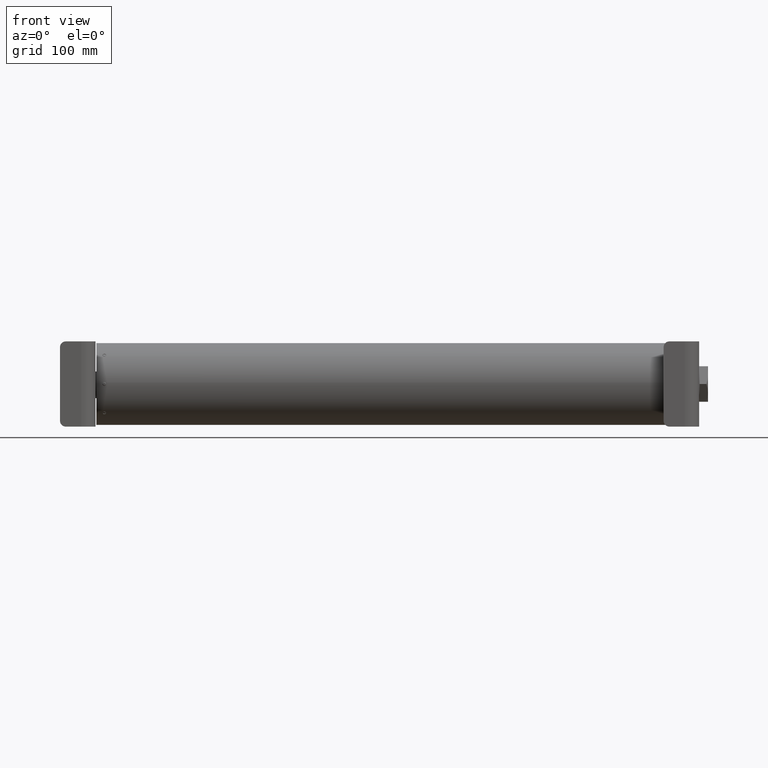
[diagram: clean part render]
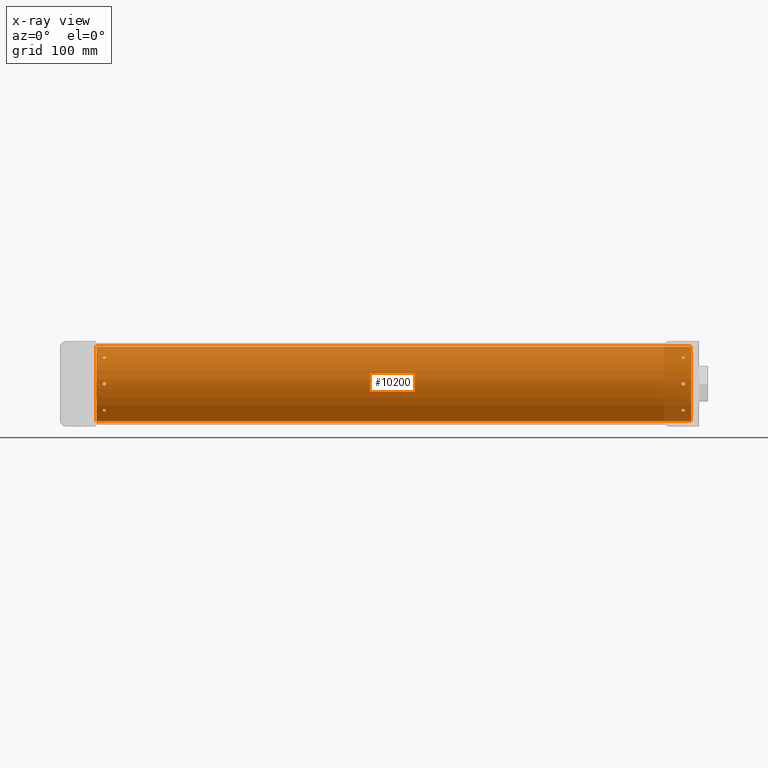
[diagram: x-ray — body ghosted, one internal face saturated and labeled with its STEP entity id]
A machine part, front view, then the same camera in x-ray: the body is ghosted and one INTERNAL B-rep face — a face not visible from any outside direction — is saturated and labeled: STEP entity #10200.
In plain terms, the highlighted cylindrical surface (partial cylindrical patch) has radius 33.3375 mm, axis along (-1, -0, -0).
Its self-contained STEP definition (entity closure, byte-faithful):
#28 = CARTESIAN_POINT ( 'NONE',  ( 10.14287910837391493, -0.9568006874301553388, -0.8984415503835769812 ) ) ;
#61 = ORIENTED_EDGE ( 'NONE', *, *, #16589, .F. ) ;
#178 = CARTESIAN_POINT ( 'NONE',  ( 10.46899999999999942, 0.000000000000000000, 1.312500000000000000 ) ) ;
#210 = CARTESIAN_POINT ( 'NONE',  ( -10.25049876357292433, -1.312405983245032548, 0.01621275524315042224 ) ) ;
#291 = CARTESIAN_POINT ( 'NONE',  ( -10.13071096452952702, -1.312350079511483303, 0.02019413915220366965 ) ) ;
#342 = CARTESIAN_POINT ( 'NONE',  ( -10.13383652624999343, -0.02772556189842324478, 1.312212588228475862 ) ) ;
#392 = VERTEX_POINT ( 'NONE', #2007 ) ;
#432 = CARTESIAN_POINT ( 'NONE',  ( -10.21012863043742591, -1.311160106146374238, 0.05931181295824174832 ) ) ;
#438 = CARTESIAN_POINT ( 'NONE',  ( 10.13577797570884442, -0.03134965782268164802, -1.312129915562598947 ) ) ;
#442 = CARTESIAN_POINT ( 'NONE',  ( -10.15159087475541178, -0.04997506726929461240, 1.311560908077971987 ) ) ;
#480 = B_SPLINE_CURVE_WITH_KNOTS ( 'NONE', 3,
 ( #15138, #10946, #15358, #829, #10315, #4107, #15261, #3791, #7162, #2203, #16944, #7265, #9346, #735, #2913, #13546, #17052, #10215, #10541, #20016, #5449, #16707, #12045, #2524 ),
 .UNSPECIFIED., .F., .F.,
 ( 4, 2, 2, 2, 2, 2, 2, 2, 2, 2, 2, 4 ),
 ( 0.004963951373036046798, 0.005584304017098234291, 0.006204656661160421784, 0.006514832983191456983, 0.006825009305222492183, 0.007135185627253527382, 0.007445361949284561714, 0.008065714593346618236, 0.008375890915377649099, 0.008686067237408679961, 0.009306419881470870056, 0.009926772525533060151 ),
 .UNSPECIFIED. ) ;
#509 = CARTESIAN_POINT ( 'NONE',  ( 10.13537691268047958, -1.312144804314459234, -0.03144606529227998021 ) ) ;
#543 = CARTESIAN_POINT ( 'NONE',  ( 10.12790785167592311, -0.008216472667664854665, -1.312480398968122408 ) ) ;
#576 = CARTESIAN_POINT ( 'NONE',  ( 10.24616619659018113, -0.02771950554009147000, -1.312212706656428862 ) ) ;
#580 = CARTESIAN_POINT ( 'NONE',  ( -10.46899999999999942, 0.000000000000000000, 1.312500000000000000 ) ) ;
#595 = CARTESIAN_POINT ( 'NONE',  ( 10.15189639809319999, -0.9625631993316471346, 0.8922631283820494641 ) ) ;
#607 = CARTESIAN_POINT ( 'NONE',  ( -10.18999999999941508, -0.9712189847111223351, -0.8828306370627929667 ) ) ;
#613 = CARTESIAN_POINT ( 'NONE',  ( -10.14295391688715497, -1.311851756863856133, 0.04134628760164701239 ) ) ;
#623 = CARTESIAN_POINT ( 'NONE',  ( 10.25250679181930913, -1.312500323419884651, -0.008193356651929590770 ) ) ;
#628 = CARTESIAN_POINT ( 'NONE',  ( 10.16987136956140425, -1.311160106146374238, 0.05931181295824174832 ) ) ;
#650 = CARTESIAN_POINT ( 'NONE',  ( 10.23970401168617350, -0.03811107001241114539, 1.311950969906845010 ) ) ;
#656 = CARTESIAN_POINT ( 'NONE',  ( 10.18999999999941508, -0.06250000000000538458, -1.311011060212689205 ) ) ;
#684 = EDGE_CURVE ( 'NONE', #14212, #11954, #15694, .T. ) ;
#711 = DIRECTION ( 'NONE',  ( -1.000000000000000000, -0.000000000000000000, -0.000000000000000000 ) ) ;
#730 = CARTESIAN_POINT ( 'NONE',  ( -10.20622845510852450, -0.06049426845170316480, -1.311105385765345632 ) ) ;
#735 = CARTESIAN_POINT ( 'NONE',  ( 10.25250679181931091, -0.9338714570490020961, 0.9222843009504724243 ) ) ;
#763 = CARTESIAN_POINT ( 'NONE',  ( -10.22135592047505881, -0.8889486419472024670, 0.9656250266053008069 ) ) ;
#818 = CARTESIAN_POINT ( 'NONE',  ( -10.20618057488107233, -0.8843066081156492064, -0.9698756130673442666 ) ) ;
#829 = CARTESIAN_POINT ( 'NONE',  ( 10.22142167512195776, -0.8886416439686655178, 0.9659099271619302485 ) ) ;
#863 = CARTESIAN_POINT ( 'NONE',  ( -10.24618715497762089, -0.9083044652828077270, 0.9474458144734928533 ) ) ;
#915 = CARTESIAN_POINT ( 'NONE',  ( -10.18999999999941508, -0.9712189847111223351, -0.8828306370627929667 ) ) ;
#929 = CARTESIAN_POINT ( 'NONE',  ( -10.23970420657752101, -0.9546368764913508720, -0.9007420047900269733 ) ) ;
#944 = CARTESIAN_POINT ( 'NONE',  ( 10.22149724892188871, -1.311367829714471300, -0.05459339693408346572 ) ) ;
#977 = CARTESIAN_POINT ( 'NONE',  ( 10.46899999999999942, 0.000000000000000000, 1.312500000000000000 ) ) ;
#980 = CARTESIAN_POINT ( 'NONE',  ( -10.25250144853857215, -0.9252104873692937881, 0.9309449107950878988 ) ) ;
#1051 = EDGE_CURVE ( 'NONE', #17326, #14702, #14488, .T. ) ;
#1053 = CARTESIAN_POINT ( 'NONE',  ( -10.15850275107694145, -1.311367829714471300, -0.05459339693408346572 ) ) ;
#1055 = CARTESIAN_POINT ( 'NONE',  ( -10.23969626046341297, -0.03811968860917736013, -1.311950687221227430 ) ) ;
#1124 = CARTESIAN_POINT ( 'NONE',  ( -10.14029550793072509, -0.03811078370472212318, -1.311950985408540493 ) ) ;
#1151 = CARTESIAN_POINT ( 'NONE',  ( -10.18999999999941508, -1.311011060212689872, -0.06249999999999066025 ) ) ;
#1152 = CARTESIAN_POINT ( 'NONE',  ( -10.22134944626843733, -0.05422206663724316728, -1.311381463636385858 ) ) ;
#1196 = EDGE_CURVE ( 'NONE', #20209, #8218, #8029, .T. ) ;
#1232 = VERTEX_POINT ( 'NONE', #13142 ) ;
#1320 = CARTESIAN_POINT ( 'NONE',  ( -10.17361316045856867, -0.06086095584708684642, -1.311091881801277115 ) ) ;
#1377 = LINE ( 'NONE', #9383, #20743 ) ;
#1414 = CARTESIAN_POINT ( 'NONE',  ( -10.18999999999941508, -0.8828306370628029587, -0.9712189847111128982 ) ) ;
#1458 = FACE_BOUND ( 'NONE', #12438, .T. ) ;
#1491 = CARTESIAN_POINT ( 'NONE',  ( 10.20637834143496825, -0.9701183098797923066, -0.8840454873032687066 ) ) ;
#1592 = CIRCLE ( 'NONE', #3613, 1.312500000000000000 ) ;
#1631 = CARTESIAN_POINT ( 'NONE',  ( 10.13068188775074141, -0.9421919357103997195, -0.9137532102807178758 ) ) ;
#1687 = CARTESIAN_POINT ( 'NONE',  ( 10.13381284502120927, -0.9083044652828077270, 0.9474458144734928533 ) ) ;
#1808 = EDGE_CURVE ( 'NONE', #1971, #3128, #13337, .T. ) ;
#1901 = B_SPLINE_CURVE_WITH_KNOTS ( 'NONE', 3,
 ( #2179, #8607, #5422, #4845, #14398, #8121, #13014, #595, #8013, #15114, #12814, #14710, #7906, #6636, #11217, #4755, #9694, #1687, #16683, #16092, #17924, #13129, #11316, #17815, #7027, #3473, #10194, #19992, #20887, #9588 ),
 .UNSPECIFIED., .F., .F.,
 ( 4, 2, 2, 2, 2, 2, 2, 2, 2, 2, 2, 2, 2, 2, 4 ),
 ( 0.000000000000000000, 0.0003102469608147090689, 0.0006204939216294181378, 0.0009307408824441270982, 0.001240987843258836276, 0.001861481764888371507, 0.002481975686517907172, 0.002792222647332674463, 0.003102469608147442187, 0.003412716568962209478, 0.003722963529776976768, 0.004033210490591744059, 0.004343457451406511349, 0.004653704412221279507, 0.004963951373036046798 ),
 .UNSPECIFIED. ) ;
#1914 = CARTESIAN_POINT ( 'NONE',  ( -10.21771970946738683, -1.311298617217787843, -0.05616629743107677541 ) ) ;
#1971 = VERTEX_POINT ( 'NONE', #3232 ) ;
#2007 = CARTESIAN_POINT ( 'NONE',  ( 10.18999999999941508, -1.311011060212688761, 0.06250000000001088019 ) ) ;
#2013 = CARTESIAN_POINT ( 'NONE',  ( 10.20646251847683139, -0.8840623107461518249, -0.9701030123224134716 ) ) ;
#2029 = CARTESIAN_POINT ( 'NONE',  ( -10.23712089162491345, -1.311854367101795038, 0.04126614154983375415 ) ) ;
#2038 = CARTESIAN_POINT ( 'NONE',  ( 10.14288712452890096, -0.04127521169987972277, -1.311854079302999132 ) ) ;
#2099 = EDGE_LOOP ( 'NONE', ( #7954, #7105 ) ) ;
#2101 = CARTESIAN_POINT ( 'NONE',  ( -10.18999999999941508, -1.311011060212688761, 0.06250000000001088019 ) ) ;
#2179 = CARTESIAN_POINT ( 'NONE',  ( 10.18999999999941508, -0.9712189847111158958, 0.8828306370627995170 ) ) ;
#2188 = CARTESIAN_POINT ( 'NONE',  ( -10.22810360190563017, -0.8922631283820529058, -0.9625631993316443591 ) ) ;
#2203 = CARTESIAN_POINT ( 'NONE',  ( 10.24928903546930137, -0.9136922277785324287, 0.9422510532480172785 ) ) ;
#2208 = CARTESIAN_POINT ( 'NONE',  ( 10.14868019086590145, -1.311658883975127310, -0.04706958367393404563 ) ) ;
#2211 = CARTESIAN_POINT ( 'NONE',  ( -10.15160275101943732, -0.8920700670674857058, 0.9627566854523069706 ) ) ;
#2317 = CARTESIAN_POINT ( 'NONE',  ( 10.25208931873546980, -1.312480266540686724, 0.008231452960041378206 ) ) ;
#2324 = CARTESIAN_POINT ( 'NONE',  ( -10.15153848956230398, -0.9627240709858824186, 0.8921053567529312334 ) ) ;
#2342 = CARTESIAN_POINT ( 'NONE',  ( 10.18177943252526063, -0.06209139667569163468, -1.311030719532256139 ) ) ;
#2353 = EDGE_LOOP ( 'NONE', ( #20401, #8323 ) ) ;
#2369 = CARTESIAN_POINT ( 'NONE',  ( 10.12790860324885145, -0.008220567197727773195, 1.312480363752701829 ) ) ;
#2413 = CARTESIAN_POINT ( 'NONE',  ( -10.23711287546992743, -0.04127521169987972277, -1.311854079302999132 ) ) ;
#2421 = CARTESIAN_POINT ( 'NONE',  ( 10.25249999999941508, 0.000000000000000000, 1.312500000000000000 ) ) ;
#2429 = CARTESIAN_POINT ( 'NONE',  ( -10.13572932955796269, -0.9499261609024106656, 0.9057086049094468239 ) ) ;
#2495 = VERTEX_POINT ( 'NONE', #15616 ) ;
#2524 = CARTESIAN_POINT ( 'NONE',  ( 10.18999999999941508, -0.9712189847111158958, 0.8828306370627995170 ) ) ;
#2554 = B_SPLINE_CURVE_WITH_KNOTS ( 'NONE', 3,
 ( #13762, #13658, #18553, #20355, #5792, #20020, #7268, #15029, #2208, #20238, #509, #5677, #4004, #12166, #12271, #8634, #13550, #8752, #16826, #15143, #10429, #6948, #7390, #18664, #13439, #628, #5453, #10221, #4112, #5561 ),
 .UNSPECIFIED., .F., .F.,
 ( 4, 2, 2, 2, 2, 2, 2, 2, 2, 2, 2, 2, 2, 2, 4 ),
 ( 0.000000000000000000, 0.0003102469608147086894, 0.0006204939216294173788, 0.0009307408824441261224, 0.001240987843258834758, 0.001861481764888369556, 0.002481975686517904570, 0.002792222647332672295, 0.003102469608147440019, 0.003412716568962207743, 0.003722963529776975034, 0.004033210490591742324, 0.004343457451406510482, 0.004653704412221277772, 0.004963951373036045930 ),
 .UNSPECIFIED. ) ;
#2594 = CARTESIAN_POINT ( 'NONE',  ( -10.14293547739658052, -0.04132551438323744247, -1.311852417433045481 ) ) ;
#2613 = CARTESIAN_POINT ( 'NONE',  ( 10.18999999999941508, -1.311011060212689872, -0.06249999999999066025 ) ) ;
#2697 = CARTESIAN_POINT ( 'NONE',  ( 10.13382242562529534, -0.02769702266098317267, 1.312213194004898664 ) ) ;
#2909 = CARTESIAN_POINT ( 'NONE',  ( 10.17376794942164686, -0.9698668077373024943, -0.8843162697362859648 ) ) ;
#2913 = CARTESIAN_POINT ( 'NONE',  ( 10.25089003695845591, -0.9395523004986858773, 0.9164906898068999608 ) ) ;
#2988 = EDGE_CURVE ( 'NONE', #8218, #20209, #15158, .T. ) ;
#2993 = CARTESIAN_POINT ( 'NONE',  ( -10.15160275101943732, -0.9627566854523098572, -0.8920700670674820421 ) ) ;
#3128 = VERTEX_POINT ( 'NONE', #11587 ) ;
#3194 = CARTESIAN_POINT ( 'NONE',  ( -10.15857832487687240, -0.9659099271619332461, -0.8886416439686622981 ) ) ;
#3232 = CARTESIAN_POINT ( 'NONE',  ( -10.18999999999941508, -1.311011060212688761, 0.06250000000001088019 ) ) ;
#3252 = CARTESIAN_POINT ( 'NONE',  ( -10.18999999999941508, -0.8828306370628029587, -0.9712189847111128982 ) ) ;
#3274 = CARTESIAN_POINT ( 'NONE',  ( -10.24617757437353660, -0.02769702266098317614, 1.312213194004898664 ) ) ;
#3279 = CARTESIAN_POINT ( 'NONE',  ( 10.19825841666817468, -0.8828306370628029587, -0.9712189847111130092 ) ) ;
#3307 = CARTESIAN_POINT ( 'NONE',  ( -10.13069719693461757, -0.02015490299760677381, 1.312350701364927152 ) ) ;
#3401 = CARTESIAN_POINT ( 'NONE',  ( 10.25209444894672473, -0.008193003813655007003, 1.312480510634228326 ) ) ;
#3473 = CARTESIAN_POINT ( 'NONE',  ( 10.16987136956140425, -0.8851904171301394619, 0.9690699874246103684 ) ) ;
#3498 = CARTESIAN_POINT ( 'NONE',  ( -10.22135592047505703, -1.311381617243487341, 0.05421839154861742699 ) ) ;
#3613 = AXIS2_PLACEMENT_3D ( 'NONE', #9336, #4387, #20519 ) ;
#3617 = CARTESIAN_POINT ( 'NONE',  ( 10.12749999999941330, 1.607348936011528997E-16, -1.312500000000000000 ) ) ;
#3650 = CARTESIAN_POINT ( 'NONE',  ( 10.25249999999941508, -0.004125203379245419820, -1.312499999999999778 ) ) ;
#3781 = CARTESIAN_POINT ( 'NONE',  ( -10.23712089162491345, -0.9568006874301553388, -0.8984415503835769812 ) ) ;
#3791 = CARTESIAN_POINT ( 'NONE',  ( 10.24422896657614857, -0.9056556968148870013, 0.9499766101858357903 ) ) ;
#3821 = CARTESIAN_POINT ( 'NONE',  ( 10.15188220224327864, -0.04969762354489429268, -1.311560719865273450 ) ) ;
#3837 = EDGE_CURVE ( 'NONE', #19269, #11954, #8926, .T. ) ;
#3878 = CARTESIAN_POINT ( 'NONE',  ( -10.13572932955795913, -1.312131926311075114, -0.03126653369011270223 ) ) ;
#3890 = CARTESIAN_POINT ( 'NONE',  ( 10.24427067044086570, -1.312131926311075114, -0.03126653369011270223 ) ) ;
#3900 = VERTEX_POINT ( 'NONE', #915 ) ;
#3922 = CARTESIAN_POINT ( 'NONE',  ( -10.25049876357292611, -0.9165470212482171863, 0.9394753195965053205 ) ) ;
#3948 = CARTESIAN_POINT ( 'NONE',  ( 10.16987411642857531, -0.05931240293164678767, 1.311160076628461013 ) ) ;
#3985 = CARTESIAN_POINT ( 'NONE',  ( -10.25049876357292433, -0.9394753195965078740, -0.9165470212482140777 ) ) ;
#3993 = CARTESIAN_POINT ( 'NONE',  ( -10.25209214832290705, -0.008216472667664854665, -1.312480398968122408 ) ) ;
#4004 = CARTESIAN_POINT ( 'NONE',  ( 10.12750290897646011, -1.312499861477292917, -0.008176497764455167155 ) ) ;
#4008 = CARTESIAN_POINT ( 'NONE',  ( -10.13384994440204068, -0.9082505042319246602, 0.9474975229584243763 ) ) ;
#4043 = CARTESIAN_POINT ( 'NONE',  ( -10.18999999999941508, -0.8828306370628029587, -0.9712189847111128982 ) ) ;
#4107 = CARTESIAN_POINT ( 'NONE',  ( 10.23704608311167163, -0.8983830328499109452, 0.9568555135299275927 ) ) ;
#4112 = CARTESIAN_POINT ( 'NONE',  ( 10.18592062496465900, -1.311011060212689205, 0.06250000000001088019 ) ) ;
#4127 = CARTESIAN_POINT ( 'NONE',  ( -10.18999999999941508, -0.9712189847111158958, 0.8828306370627995170 ) ) ;
#4133 = CARTESIAN_POINT ( 'NONE',  ( -10.23712089162491701, -0.8984415503835802008, 0.9568006874301517861 ) ) ;
#4168 = CARTESIAN_POINT ( 'NONE',  ( -10.18999999999941508, -0.06250000000000538458, -1.311011060212689205 ) ) ;
#4236 = ORIENTED_EDGE ( 'NONE', *, *, #6792, .F. ) ;
#4262 = B_SPLINE_CURVE_WITH_KNOTS ( 'NONE', 3,
 ( #3252, #7249, #8512, #818, #18533, #13741, #5774, #2188, #7037, #8734, #10300, #8617, #20002, #13421, #5658, #3985, #15125, #18333, #8942, #929, #3781, #20105, #5339, #10205, #6934, #10411, #17040, #5538, #7150, #607 ),
 .UNSPECIFIED., .F., .F.,
 ( 4, 2, 2, 2, 2, 2, 2, 2, 2, 2, 2, 2, 2, 2, 4 ),
 ( 0.000000000000000000, 0.0003102469608147071715, 0.0006204939216294143431, 0.0009307408824441214604, 0.001240987843258828686, 0.001861481764888360231, 0.002481975686517891994, 0.002792222647332661453, 0.003102469608147431345, 0.003412716568962200804, 0.003722963529776969829, 0.004033210490591738855, 0.004343457451406508747, 0.004653704412221277772, 0.004963951373036047665 ),
 .UNSPECIFIED. ) ;
#4372 = CARTESIAN_POINT ( 'NONE',  ( 10.13068675872262503, -0.02012422262064517825, 1.312351175276166071 ) ) ;
#4384 = CARTESIAN_POINT ( 'NONE',  ( -10.12790442347842124, -0.008185117757112655990, -1.312480564079608669 ) ) ;
#4387 = DIRECTION ( 'NONE',  ( 1.000000000000000000, 0.000000000000000000, 0.000000000000000000 ) ) ;
#4453 = CARTESIAN_POINT ( 'NONE',  ( 10.24618838027965317, -0.9083056544690546463, -0.9474446965540086474 ) ) ;
#4489 = CARTESIAN_POINT ( 'NONE',  ( 10.13381284502120749, -0.9474458144734961840, -0.9083044652828045074 ) ) ;
#4510 = FACE_BOUND ( 'NONE', #2353, .T. ) ;
#4566 = CARTESIAN_POINT ( 'NONE',  ( -10.12791068126336214, -0.9338842128515078000, -0.9222431804373861786 ) ) ;
#4672 = CARTESIAN_POINT ( 'NONE',  ( -10.13384994440204245, -0.9474975229584277070, -0.9082505042319216626 ) ) ;
#4749 = CARTESIAN_POINT ( 'NONE',  ( 10.18999999999941508, -0.06250000000000538458, -1.311011060212689205 ) ) ;
#4755 = CARTESIAN_POINT ( 'NONE',  ( 10.12950123642590761, -0.9165470212482171863, 0.9394753195965053205 ) ) ;
#4797 = CARTESIAN_POINT ( 'NONE',  ( 10.12750290897646011, -0.9222958953413930017, -0.9338592093726030274 ) ) ;
#4845 = CARTESIAN_POINT ( 'NONE',  ( 10.17381942511775605, -0.9698756130673472642, 0.8843066081156457647 ) ) ;
#4866 = CARTESIAN_POINT ( 'NONE',  ( -10.23131980913293049, -1.311658883975127310, -0.04706958367393404563 ) ) ;
#4870 = CARTESIAN_POINT ( 'NONE',  ( -10.18184310756028310, -0.9712189847111222241, -0.8828306370627928557 ) ) ;
#4920 = ORIENTED_EDGE ( 'NONE', *, *, #14547, .F. ) ;
#5019 = VERTEX_POINT ( 'NONE', #19896 ) ;
#5081 = CARTESIAN_POINT ( 'NONE',  ( -10.22812518729126374, -1.311560933468707502, 0.04969202979307052459 ) ) ;
#5193 = FACE_BOUND ( 'NONE', #16145, .T. ) ;
#5208 = CARTESIAN_POINT ( 'NONE',  ( 10.18999999999941508, -0.06250000000000538458, -1.311011060212689205 ) ) ;
#5242 = CARTESIAN_POINT ( 'NONE',  ( -10.12749320817951926, -1.312500323419884651, -0.008193356651929590770 ) ) ;
#5279 = CARTESIAN_POINT ( 'NONE',  ( -10.20618057488107056, -1.311104822154029570, -0.06050642366072561673 ) ) ;
#5339 = CARTESIAN_POINT ( 'NONE',  ( -10.22812518729126552, -0.9625512012326833400, -0.8922760587574796176 ) ) ;
#5415 = EDGE_CURVE ( 'NONE', #1232, #5505, #11133, .T. ) ;
#5422 = CARTESIAN_POINT ( 'NONE',  ( 10.18180884475502879, -0.9709461370013895420, 0.8831310667289654637 ) ) ;
#5430 = B_SPLINE_CURVE_WITH_KNOTS ( 'NONE', 3,
 ( #18758, #18541, #3993, #15666, #13748, #16936, #10418, #1055, #2413, #20225, #7485, #1152, #10636, #7375, #730, #12357, #8851, #15352 ),
 .UNSPECIFIED., .F., .F.,
 ( 4, 2, 2, 2, 2, 2, 2, 2, 4 ),
 ( 0.002482540459360719261, 0.002792716823570135041, 0.003102893187779551254, 0.003413069551988967033, 0.003723245916198382813, 0.004033422280407799460, 0.004343598644617214372, 0.004653775008826631018, 0.004963951373036046798 ),
 .UNSPECIFIED. ) ;
#5449 = CARTESIAN_POINT ( 'NONE',  ( 10.22149724892188871, -0.9658804462010922576, 0.8886737238408842776 ) ) ;
#5453 = CARTESIAN_POINT ( 'NONE',  ( 10.17376794942164508, -1.311105427642915933, 0.06049336555467969834 ) ) ;
#5458 = CARTESIAN_POINT ( 'NONE',  ( -10.18174158333065193, -0.9712189847111154517, 0.8828306370627994060 ) ) ;
#5505 = VERTEX_POINT ( 'NONE', #19236 ) ;
#5509 = CARTESIAN_POINT ( 'NONE',  ( 10.20638683954025971, -0.06086095584708684642, -1.311091881801277115 ) ) ;
#5524 = CARTESIAN_POINT ( 'NONE',  ( 10.46899999999999942, 1.607348923880901038E-16, -1.312500000000000000 ) ) ;
#5538 = CARTESIAN_POINT ( 'NONE',  ( -10.19822243979263554, -0.9709438334509641333, -0.8831336036831529679 ) ) ;
#5554 = CARTESIAN_POINT ( 'NONE',  ( 10.24928903546930137, -1.312350079511483303, 0.02019413915220366965 ) ) ;
#5557 = EDGE_CURVE ( 'NONE', #3900, #14139, #6321, .T. ) ;
#5561 = CARTESIAN_POINT ( 'NONE',  ( 10.18999999999941508, -1.311011060212688761, 0.06250000000001088019 ) ) ;
#5594 = DIRECTION ( 'NONE',  ( 1.000000000000000000, 0.000000000000000000, 0.000000000000000000 ) ) ;
#5620 = CARTESIAN_POINT ( 'NONE',  ( 10.13577793564121698, -0.03134945029622759893, 1.312129918354210778 ) ) ;
#5658 = CARTESIAN_POINT ( 'NONE',  ( -10.25209491630712932, -0.9338593641257538769, -0.9222684025404848107 ) ) ;
#5672 = EDGE_LOOP ( 'NONE', ( #11694, #10709 ) ) ;
#5677 = CARTESIAN_POINT ( 'NONE',  ( 10.12914378099014456, -1.312419058537813710, -0.01640296614989320695 ) ) ;
#5680 = CARTESIAN_POINT ( 'NONE',  ( -10.12750342791720648, -0.9251259668946950621, 0.9310291028720784068 ) ) ;
#5774 = CARTESIAN_POINT ( 'NONE',  ( -10.22130961342083388, -0.8889282232637566450, -0.9656438354087072407 ) ) ;
#5785 = VERTEX_POINT ( 'NONE', #977 ) ;
#5789 = CARTESIAN_POINT ( 'NONE',  ( 10.20646251847682962, -1.311092873382727619, -0.06083996354261958506 ) ) ;
#5792 = CARTESIAN_POINT ( 'NONE',  ( 10.16984958333519629, -1.311160448044416782, -0.05930426602162088001 ) ) ;
#5817 = CARTESIAN_POINT ( 'NONE',  ( -10.23128733194786655, -0.8941757406943271480, 0.9607884885219094562 ) ) ;
#5842 = CARTESIAN_POINT ( 'NONE',  ( 10.14872479289895502, -0.04711287952885028635, 1.311657403268107203 ) ) ;
#5854 = CARTESIAN_POINT ( 'NONE',  ( -10.13383380340864726, -0.02771950554009147000, -1.312212706656428862 ) ) ;
#5941 = CARTESIAN_POINT ( 'NONE',  ( 10.12749999999941330, 2.168202832509523014E-25, 1.312500000000000000 ) ) ;
#5954 = CARTESIAN_POINT ( 'NONE',  ( -10.12749999999940975, -0.004125203379245419820, -1.312499999999999778 ) ) ;
#6041 = CARTESIAN_POINT ( 'NONE',  ( 10.20637834143496825, -1.311091794418740575, 0.06086267651972957632 ) ) ;
#6058 = CARTESIAN_POINT ( 'NONE',  ( -10.13071096452952879, -0.9422510532480200540, -0.9136922277785288760 ) ) ;
#6113 = EDGE_CURVE ( 'NONE', #11610, #392, #2554, .T. ) ;
#6140 = CARTESIAN_POINT ( 'NONE',  ( -10.21012588357025486, -0.05931240293164678767, 1.311160076628461013 ) ) ;
#6144 = CARTESIAN_POINT ( 'NONE',  ( 10.23704608311167341, -0.9568555135299308123, -0.8983830328499075035 ) ) ;
#6174 = CARTESIAN_POINT ( 'NONE',  ( 10.15189639809320710, -0.8922631283820529058, -0.9625631993316443591 ) ) ;
#6178 = CARTESIAN_POINT ( 'NONE',  ( 10.22846151043652796, -1.311562466298478613, -0.04993497171278667157 ) ) ;
#6302 = DIRECTION ( 'NONE',  ( -1.000000000000000000, -0.000000000000000000, -0.000000000000000000 ) ) ;
#6321 = B_SPLINE_CURVE_WITH_KNOTS ( 'NONE', 3,
 ( #12631, #4870, #7637, #3194, #2993, #7736, #20607, #20812, #4672, #6058, #9318, #4566, #7934, #17742, #14240, #11137, #11023, #9424, #8044, #9620, #15932, #6463, #12847, #1414 ),
 .UNSPECIFIED., .F., .F.,
 ( 4, 2, 2, 2, 2, 2, 2, 2, 2, 2, 2, 4 ),
 ( 0.004963951373036047665, 0.005584304017098241230, 0.006204656661160433927, 0.006514832983191471728, 0.006825009305222509530, 0.007135185627253547332, 0.007445361949284584266, 0.008065714593346645991, 0.008375890915377673385, 0.008686067237408699043, 0.009306419881470882199, 0.009926772525533063621 ),
 .UNSPECIFIED. ) ;
#6381 = CARTESIAN_POINT ( 'NONE',  ( 10.18999999999941508, -0.8828306370628029587, -0.9712189847111128982 ) ) ;
#6442 = CARTESIAN_POINT ( 'NONE',  ( -10.25049426826028665, -0.01622845596688747907, 1.312405775733408220 ) ) ;
#6446 = CARTESIAN_POINT ( 'NONE',  ( 10.19815689243854528, -0.9712189847111222241, -0.8828306370627928557 ) ) ;
#6458 = CARTESIAN_POINT ( 'NONE',  ( -10.18999999999941508, -1.311011060212688761, 0.06250000000001088019 ) ) ;
#6463 = CARTESIAN_POINT ( 'NONE',  ( -10.17353748152200410, -0.8840623107461518249, -0.9701030123224134716 ) ) ;
#6469 = CARTESIAN_POINT ( 'NONE',  ( -10.18184375852760937, -0.06249999999998679528, 1.311011060212690538 ) ) ;
#6557 = CARTESIAN_POINT ( 'NONE',  ( 10.25249999999941508, 0.000000000000000000, 1.312500000000000000 ) ) ;
#6636 = CARTESIAN_POINT ( 'NONE',  ( 10.12749855146025801, -0.9252104873692937881, 0.9309449107950878988 ) ) ;
#6663 = CARTESIAN_POINT ( 'NONE',  ( -10.24931811224809053, -1.312351398240575895, 0.02010921559963347455 ) ) ;
#6677 = CARTESIAN_POINT ( 'NONE',  ( -10.17361497914365209, -0.06086130023875479383, 1.311091863995401008 ) ) ;
#6740 = CARTESIAN_POINT ( 'NONE',  ( -10.12950420183009825, -1.312405847348199650, 0.01622031820890869683 ) ) ;
#6751 = B_SPLINE_CURVE_WITH_KNOTS ( 'NONE', 3,
 ( #6557, #11456, #3401, #9830, #8246, #14743, #16636, #650, #13574, #7294, #16970, #13787, #12188, #6871 ),
 .UNSPECIFIED., .F., .F.,
 ( 4, 2, 2, 2, 2, 2, 4 ),
 ( 0.000000000000000000, 0.0003103175628844192005, 0.0006206351257688384011, 0.0009309526886532576559, 0.001241270251537676802, 0.001861905377306397351, 0.002482540503075117682 ),
 .UNSPECIFIED. ) ;
#6783 = CARTESIAN_POINT ( 'NONE',  ( -10.18999999999941508, -0.06249999999998706590, 1.311011060212689872 ) ) ;
#6792 = EDGE_CURVE ( 'NONE', #8180, #14212, #15437, .T. ) ;
#6818 = EDGE_CURVE ( 'NONE', #16602, #18990, #15170, .T. ) ;
#6869 = CARTESIAN_POINT ( 'NONE',  ( -10.19822243979263376, -1.311030728642508691, 0.06209120892637135652 ) ) ;
#6871 = CARTESIAN_POINT ( 'NONE',  ( 10.18999999999941508, -0.06249999999998706590, 1.311011060212689872 ) ) ;
#6934 = CARTESIAN_POINT ( 'NONE',  ( -10.21770295149501173, -0.9669494157435988280, -0.8875063619486212030 ) ) ;
#6948 = CARTESIAN_POINT ( 'NONE',  ( 10.14871266805096006, -1.311657785337277948, 0.04710232570236079497 ) ) ;
#6963 = AXIS2_PLACEMENT_3D ( 'NONE', #20861, #6302, #17693 ) ;
#6978 = B_SPLINE_CURVE_WITH_KNOTS ( 'NONE', 3,
 ( #4168, #10604, #1320, #12541, #8915, #2594, #1124, #17122, #5854, #15735, #14252, #4384, #5954, #13832 ),
 .UNSPECIFIED., .F., .F.,
 ( 4, 2, 2, 2, 2, 2, 4 ),
 ( 0.004963951373036046798, 0.005584627815854218379, 0.006205304258672389960, 0.006515642480081416769, 0.006825980701490443579, 0.007136318922899470389, 0.007446657144308497199 ),
 .UNSPECIFIED. ) ;
#7002 = ORIENTED_EDGE ( 'NONE', *, *, #19140, .T. ) ;
#7027 = CARTESIAN_POINT ( 'NONE',  ( 10.16229704850382021, -0.8875063619486243116, 0.9669494157435959414 ) ) ;
#7037 = CARTESIAN_POINT ( 'NONE',  ( -10.23131980913293226, -0.8941996696589230575, -0.9607661132658604775 ) ) ;
#7044 = CARTESIAN_POINT ( 'NONE',  ( -10.14031394646828232, -1.311950285830957297, 0.03813461133275729276 ) ) ;
#7054 = CARTESIAN_POINT ( 'NONE',  ( 10.23974444789589455, -1.311952513039696733, -0.03805774169120246936 ) ) ;
#7063 = CARTESIAN_POINT ( 'NONE',  ( -10.13577103342268337, -0.9056556968148870013, 0.9499766101858357903 ) ) ;
#7090 = CARTESIAN_POINT ( 'NONE',  ( -10.25249709102237361, -0.9338592093726061361, 0.9222958953413896710 ) ) ;
#7105 = ORIENTED_EDGE ( 'NONE', *, *, #13257, .F. ) ;
#7122 = CARTESIAN_POINT ( 'NONE',  ( 10.25249999999941508, 1.607348924524440699E-16, -1.312500000000000000 ) ) ;
#7133 = EDGE_CURVE ( 'NONE', #18990, #16602, #16644, .T. ) ;
#7150 = CARTESIAN_POINT ( 'NONE',  ( -10.19407937503416939, -0.9712189847111220020, -0.8828306370627928557 ) ) ;
#7162 = CARTESIAN_POINT ( 'NONE',  ( 10.24615005559679126, -0.9082505042319246602, 0.9474975229584243763 ) ) ;
#7188 = CARTESIAN_POINT ( 'NONE',  ( -10.23131980913293049, -0.9607661132658632530, 0.8941996696589195048 ) ) ;
#7199 = CARTESIAN_POINT ( 'NONE',  ( -10.12749999999941686, 0.000000000000000000, 1.312500000000000000 ) ) ;
#7249 = CARTESIAN_POINT ( 'NONE',  ( -10.19413014870942469, -0.8828306370628032917, -0.9712189847111128982 ) ) ;
#7253 = ORIENTED_EDGE ( 'NONE', *, *, #1196, .F. ) ;
#7255 = CARTESIAN_POINT ( 'NONE',  ( -10.15153848956230576, -1.311562466298478613, -0.04993497171278667157 ) ) ;
#7265 = CARTESIAN_POINT ( 'NONE',  ( 10.25208931873546803, -0.9222431804373895092, 0.9338842128515049135 ) ) ;
#7268 = CARTESIAN_POINT ( 'NONE',  ( 10.15869038657799805, -1.311380478886394307, -0.05424612957056824947 ) ) ;
#7294 = CARTESIAN_POINT ( 'NONE',  ( 10.22840912524341661, -0.04997506726929460547, 1.311560908077972210 ) ) ;
#7299 = CARTESIAN_POINT ( 'NONE',  ( -10.21771970946738683, -0.9669437141829012594, 0.8875125746075800404 ) ) ;
#7352 = EDGE_CURVE ( 'NONE', #8180, #20783, #1377, .T. ) ;
#7375 = CARTESIAN_POINT ( 'NONE',  ( -10.21012422100238837, -0.05931324176639740653, -1.311160040658170045 ) ) ;
#7390 = CARTESIAN_POINT ( 'NONE',  ( 10.15187481270756642, -1.311560933468707502, 0.04969202979307052459 ) ) ;
#7418 = CARTESIAN_POINT ( 'NONE',  ( -10.25085621900868738, -0.9396190646467209584, 0.9164217674543843062 ) ) ;
#7429 = ORIENTED_EDGE ( 'NONE', *, *, #8056, .F. ) ;
#7485 = CARTESIAN_POINT ( 'NONE',  ( -10.22811779775555330, -0.04969762354489429268, -1.311560719865273450 ) ) ;
#7489 = ORIENTED_EDGE ( 'NONE', *, *, #16513, .F. ) ;
#7501 = CARTESIAN_POINT ( 'NONE',  ( -10.18184310756028843, -0.8828306370627964084, 0.9712189847111192265 ) ) ;
#7581 = CARTESIAN_POINT ( 'NONE',  ( -10.14025555210293916, -1.311952513039696733, -0.03805774169120246936 ) ) ;
#7598 = DIRECTION ( 'NONE',  ( -1.000000000000000000, -0.000000000000000000, -0.000000000000000000 ) ) ;
#7637 = CARTESIAN_POINT ( 'NONE',  ( -10.17362165856386191, -0.9701183098797923066, -0.8840454873032687066 ) ) ;
#7736 = CARTESIAN_POINT ( 'NONE',  ( -10.14295391688716208, -0.9568555135299308123, -0.8983830328499075035 ) ) ;
#7825 = CARTESIAN_POINT ( 'NONE',  ( 10.24427067044086748, -0.9057086049094502656, -0.9499261609024076680 ) ) ;
#7882 = FACE_BOUND ( 'NONE', #5672, .T. ) ;
#7906 = CARTESIAN_POINT ( 'NONE',  ( 10.12750290897645833, -0.9338592093726061361, 0.9222958953413896710 ) ) ;
#7934 = CARTESIAN_POINT ( 'NONE',  ( -10.12750342791720826, -0.9310291028720820705, -0.9251259668946920645 ) ) ;
#7954 = ORIENTED_EDGE ( 'NONE', *, *, #6113, .F. ) ;
#7956 = CARTESIAN_POINT ( 'NONE',  ( 10.12790508369170617, -0.9338593641257538769, -0.9222684025404848107 ) ) ;
#8013 = CARTESIAN_POINT ( 'NONE',  ( 10.14868019086590145, -0.9607661132658632530, 0.8941996696589195048 ) ) ;
#8021 = CARTESIAN_POINT ( 'NONE',  ( -10.19407626514715481, -0.06249999999998721856, 1.311011060212690316 ) ) ;
#8029 = B_SPLINE_CURVE_WITH_KNOTS ( 'NONE', 3,
 ( #14117, #6446, #1491, #20591, #17406, #6144, #19118, #19331, #17727, #12934, #12510, #19022, #9601, #19423, #17828, #4453, #7825, #12714, #20798, #8339, #14836, #2013, #3279, #11437 ),
 .UNSPECIFIED., .F., .F.,
 ( 4, 2, 2, 2, 2, 2, 2, 2, 2, 2, 2, 4 ),
 ( 0.004963951373036047665, 0.005584304017098241230, 0.006204656661160433927, 0.006514832983191471728, 0.006825009305222509530, 0.007135185627253547332, 0.007445361949284584266, 0.008065714593346645991, 0.008375890915377673385, 0.008686067237408699043, 0.009306419881470882199, 0.009926772525533063621 ),
 .UNSPECIFIED. ) ;
#8044 = CARTESIAN_POINT ( 'NONE',  ( -10.14289263926919382, -0.8984336632913737519, -0.9568079960292805719 ) ) ;
#8056 = EDGE_CURVE ( 'NONE', #14686, #20783, #6978, .T. ) ;
#8069 = CARTESIAN_POINT ( 'NONE',  ( 10.13577047327864022, -0.9499746460378526436, -0.9056577151637237311 ) ) ;
#8121 = CARTESIAN_POINT ( 'NONE',  ( 10.16228029053144333, -0.9669437141829012594, 0.8875125746075800404 ) ) ;
#8131 = CARTESIAN_POINT ( 'NONE',  ( -10.22811968397680005, -0.04969626395213513903, 1.311560772521887408 ) ) ;
#8172 = CARTESIAN_POINT ( 'NONE',  ( 10.14003303250997590, -0.9005223930612600292, -0.9548554676324989554 ) ) ;
#8175 = ORIENTED_EDGE ( 'NONE', *, *, #12085, .F. ) ;
#8180 = VERTEX_POINT ( 'NONE', #19550 ) ;
#8218 = VERTEX_POINT ( 'NONE', #10162 ) ;
#8244 = CARTESIAN_POINT ( 'NONE',  ( -10.24462308731835236, -1.312144804314459234, -0.03144606529227998021 ) ) ;
#8246 = CARTESIAN_POINT ( 'NONE',  ( 10.24930280306421082, -0.02015490299760677728, 1.312350701364927152 ) ) ;
#8323 = ORIENTED_EDGE ( 'NONE', *, *, #5557, .F. ) ;
#8339 = CARTESIAN_POINT ( 'NONE',  ( 10.22846151043652441, -0.8921053567529345640, -0.9627240709858788659 ) ) ;
#8466 = CARTESIAN_POINT ( 'NONE',  ( -10.12749999999941863, -0.004131088439051905717, 1.312500000000000444 ) ) ;
#8486 = CARTESIAN_POINT ( 'NONE',  ( 10.22841453154943814, -0.04997042598656544626, -1.311561077335927417 ) ) ;
#8512 = CARTESIAN_POINT ( 'NONE',  ( -10.19819115524380315, -0.8831310667289686833, -0.9709461370013864334 ) ) ;
#8560 = CARTESIAN_POINT ( 'NONE',  ( 10.13068759742687952, -0.02012588478398675065, -1.312351139336968009 ) ) ;
#8588 = CARTESIAN_POINT ( 'NONE',  ( 10.23970449206810507, -0.03811078370472212318, -1.311950985408540493 ) ) ;
#8607 = CARTESIAN_POINT ( 'NONE',  ( 10.18586985128940903, -0.9712189847111157848, 0.8828306370627995170 ) ) ;
#8617 = CARTESIAN_POINT ( 'NONE',  ( -10.25085621900868738, -0.9164217674543877479, -0.9396190646467179608 ) ) ;
#8627 = ORIENTED_EDGE ( 'NONE', *, *, #684, .F. ) ;
#8629 = CARTESIAN_POINT ( 'NONE',  ( 10.23704608311166986, -1.311851756863856133, 0.04134628760164701239 ) ) ;
#8634 = CARTESIAN_POINT ( 'NONE',  ( 10.12950123642590583, -1.312405983245032548, 0.01621275524315042224 ) ) ;
#8638 = CARTESIAN_POINT ( 'NONE',  ( -10.14289263926919737, -0.9568079960292842356, 0.8984336632913708653 ) ) ;
#8655 = B_SPLINE_CURVE_WITH_KNOTS ( 'NONE', 3,
 ( #9827, #16322, #14849, #5279, #19835, #1914, #18156, #14533, #4866, #17843, #8244, #20982, #18057, #10041, #14739, #210, #6663, #13155, #12946, #16527, #2029, #19644, #5081, #3498, #9924, #432, #16424, #6869, #11763, #6458 ),
 .UNSPECIFIED., .F., .F.,
 ( 4, 2, 2, 2, 2, 2, 2, 2, 2, 2, 2, 2, 2, 2, 4 ),
 ( 0.000000000000000000, 0.0003102469608147086894, 0.0006204939216294173788, 0.0009307408824441261224, 0.001240987843258834758, 0.001861481764888369556, 0.002481975686517904570, 0.002792222647332672295, 0.003102469608147440019, 0.003412716568962207743, 0.003722963529776975034, 0.004033210490591742324, 0.004343457451406510482, 0.004653704412221277772, 0.004963951373036045930 ),
 .UNSPECIFIED. ) ;
#8734 = CARTESIAN_POINT ( 'NONE',  ( -10.23996696748885782, -0.9005223930612600292, -0.9548554676324989554 ) ) ;
#8748 = CARTESIAN_POINT ( 'NONE',  ( 10.19825841666817290, -1.311011060212689650, -0.06249999999999065331 ) ) ;
#8752 = CARTESIAN_POINT ( 'NONE',  ( 10.13381284502120394, -1.312213607004512728, 0.02767711343753177441 ) ) ;
#8780 = CARTESIAN_POINT ( 'NONE',  ( -10.19413014870942469, -0.9712189847111157848, 0.8828306370627995170 ) ) ;
#8805 = CARTESIAN_POINT ( 'NONE',  ( 10.18999999999941508, -0.06249999999998706590, 1.311011060212689872 ) ) ;
#8851 = CARTESIAN_POINT ( 'NONE',  ( -10.19407844677357566, -0.06250000000000539846, -1.311011060212689427 ) ) ;
#8882 = CARTESIAN_POINT ( 'NONE',  ( -10.24931811224809053, -0.9137532102807213175, 0.9421919357103962778 ) ) ;
#8915 = CARTESIAN_POINT ( 'NONE',  ( -10.15158546844939202, -0.04997042598656544626, -1.311561077335927417 ) ) ;
#8926 = LINE ( 'NONE', #5524, #10630 ) ;
#8942 = CARTESIAN_POINT ( 'NONE',  ( -10.24422952672018994, -0.9499746460378526436, -0.9056577151637237311 ) ) ;
#8990 = EDGE_CURVE ( 'NONE', #2495, #17326, #12863, .T. ) ;
#8993 = CARTESIAN_POINT ( 'NONE',  ( -10.12749999999941330, 1.607348924525683155E-16, -1.312500000000000000 ) ) ;
#9140 = VERTEX_POINT ( 'NONE', #7199 ) ;
#9166 = CARTESIAN_POINT ( 'NONE',  ( -10.17353748152200055, -1.311092873382727619, -0.06083996354261958506 ) ) ;
#9318 = CARTESIAN_POINT ( 'NONE',  ( -10.12950420183010003, -0.9394805713273097769, -0.9165415773302686420 ) ) ;
#9336 = CARTESIAN_POINT ( 'NONE',  ( 10.46899999999999942, 0.000000000000000000, 0.000000000000000000 ) ) ;
#9342 = CARTESIAN_POINT ( 'NONE',  ( 10.18177756020619285, -0.9709438334509641333, -0.8831336036831529679 ) ) ;
#9346 = CARTESIAN_POINT ( 'NONE',  ( 10.25249657208162368, -0.9251259668946950621, 0.9310291028720784068 ) ) ;
#9383 = CARTESIAN_POINT ( 'NONE',  ( 10.46899999999999942, 1.607348923880901038E-16, -1.312500000000000000 ) ) ;
#9424 = CARTESIAN_POINT ( 'NONE',  ( -10.14025555210293739, -0.9007796313386041698, -0.9546014057915992446 ) ) ;
#9588 = CARTESIAN_POINT ( 'NONE',  ( 10.18999999999941508, -0.8828306370627962973, 0.9712189847111192265 ) ) ;
#9601 = CARTESIAN_POINT ( 'NONE',  ( 10.25249657208162724, -0.9310291028720820705, -0.9251259668946920645 ) ) ;
#9620 = CARTESIAN_POINT ( 'NONE',  ( -10.15153848956230398, -0.8921053567529345640, -0.9627240709858788659 ) ) ;
#9694 = CARTESIAN_POINT ( 'NONE',  ( 10.13068188775073786, -0.9137532102807213175, 0.9421919357103962778 ) ) ;
#9731 = CARTESIAN_POINT ( 'NONE',  ( -10.13575752228688920, -0.03131606691229251588, 1.312130749982693967 ) ) ;
#9827 = CARTESIAN_POINT ( 'NONE',  ( -10.18999999999941508, -1.311011060212689872, -0.06249999999999066025 ) ) ;
#9830 = CARTESIAN_POINT ( 'NONE',  ( 10.25050552188295150, -0.01618418126324975073, 1.312406296991527110 ) ) ;
#9882 = EDGE_CURVE ( 'NONE', #5505, #9140, #11628, .T. ) ;
#9924 = CARTESIAN_POINT ( 'NONE',  ( -10.21770295149500996, -1.311298255816741198, 0.05617472205659962414 ) ) ;
#9972 = ORIENTED_EDGE ( 'NONE', *, *, #12941, .F. ) ;
#10041 = CARTESIAN_POINT ( 'NONE',  ( -10.25250144853856860, -1.312500068978050827, 0.004054849690581630202 ) ) ;
#10048 = CARTESIAN_POINT ( 'NONE',  ( 10.12749999999941330, -0.004076265487118983094, -1.312500000000000000 ) ) ;
#10156 = CARTESIAN_POINT ( 'NONE',  ( 10.14030373953541542, -0.03811968860917736013, -1.311950687221227430 ) ) ;
#10162 = CARTESIAN_POINT ( 'NONE',  ( 10.18999999999941508, -0.8828306370628029587, -0.9712189847111128982 ) ) ;
#10194 = CARTESIAN_POINT ( 'NONE',  ( 10.17376794942164508, -0.8843162697362892954, 0.9698668077372993856 ) ) ;
#10200 = ADVANCED_FACE ( 'Face1', ( #1458, #16448, #19080, #4510, #5193, #7882, #11192 ), #14375, .F. ) ;
#10205 = CARTESIAN_POINT ( 'NONE',  ( -10.22135592047505703, -0.9656250266053040265, -0.8889486419471989143 ) ) ;
#10215 = CARTESIAN_POINT ( 'NONE',  ( 10.23974444789589633, -0.9546014057916026863, 0.9007796313386010612 ) ) ;
#10221 = CARTESIAN_POINT ( 'NONE',  ( 10.18177756020619107, -1.311030728642508691, 0.06209120892637135652 ) ) ;
#10300 = CARTESIAN_POINT ( 'NONE',  ( -10.24462308731835414, -0.9055907630196412539, -0.9500622150392580290 ) ) ;
#10315 = CARTESIAN_POINT ( 'NONE',  ( 10.22839724897938929, -0.8920700670674857058, 0.9627566854523069706 ) ) ;
#10323 = CARTESIAN_POINT ( 'NONE',  ( -10.18999999999941508, -0.8828306370627962973, 0.9712189847111192265 ) ) ;
#10348 = CARTESIAN_POINT ( 'NONE',  ( -10.25209491630712755, -0.9222684025404880304, 0.9338593641257507683 ) ) ;
#10374 = CARTESIAN_POINT ( 'NONE',  ( 10.14289081297390993, -0.04127942146496767911, 1.311853946264236681 ) ) ;
#10411 = CARTESIAN_POINT ( 'NONE',  ( -10.21012863043742591, -0.9690699874246133660, -0.8851904171301361313 ) ) ;
#10418 = CARTESIAN_POINT ( 'NONE',  ( -10.24422202428998396, -0.03134965782268164802, -1.312129915562598947 ) ) ;
#10429 = CARTESIAN_POINT ( 'NONE',  ( 10.14287910837391493, -1.311854367101795038, 0.04126614154983375415 ) ) ;
#10435 = CARTESIAN_POINT ( 'NONE',  ( -10.13071096452953235, -0.9136922277785324287, 0.9422510532480172785 ) ) ;
#10541 = CARTESIAN_POINT ( 'NONE',  ( 10.23710736072963812, -0.9568079960292842356, 0.8984336632913708653 ) ) ;
#10550 = CARTESIAN_POINT ( 'NONE',  ( -10.15857832487687240, -0.8886416439686655178, 0.9659099271619302485 ) ) ;
#10604 = CARTESIAN_POINT ( 'NONE',  ( -10.18183884999541711, -0.06250000000000539846, -1.311011060212689427 ) ) ;
#10630 = VECTOR ( 'NONE', #711, 39.37007874015748143 ) ;
#10636 = CARTESIAN_POINT ( 'NONE',  ( -10.21769701958548637, -0.05617757582758737406, -1.311298132707321873 ) ) ;
#10709 = ORIENTED_EDGE ( 'NONE', *, *, #7133, .F. ) ;
#10796 = CARTESIAN_POINT ( 'NONE',  ( -10.19819115524380315, -0.9709461370013895420, 0.8831310667289654637 ) ) ;
#10835 = B_SPLINE_CURVE_WITH_KNOTS ( 'NONE', 3,
 ( #11356, #8466, #13051, #16242, #3307, #342, #9731, #19547, #16436, #442, #11572, #6677, #6469, #6783 ),
 .UNSPECIFIED., .F., .F.,
 ( 4, 2, 2, 2, 2, 2, 4 ),
 ( 0.000000000000000000, 0.0003103175628844139964, 0.0006206351257688277759, 0.0009309526886532416097, 0.001241270251537655335, 0.001861905377306365258, 0.002482540503075074748 ),
 .UNSPECIFIED. ) ;
#10946 = CARTESIAN_POINT ( 'NONE',  ( 10.19815689243854706, -0.8828306370627964084, 0.9712189847111192265 ) ) ;
#11023 = CARTESIAN_POINT ( 'NONE',  ( -10.13572932955796269, -0.9057086049094502656, -0.9499261609024076680 ) ) ;
#11036 = VECTOR ( 'NONE', #19612, 39.37007874015748143 ) ;
#11052 = CARTESIAN_POINT ( 'NONE',  ( 10.15187481270756997, -0.9625512012326833400, -0.8922760587574796176 ) ) ;
#11116 = CARTESIAN_POINT ( 'NONE',  ( -10.23969761996345618, -0.03811780249502331325, 1.311950739855370918 ) ) ;
#11133 = B_SPLINE_CURVE_WITH_KNOTS ( 'NONE', 3,
 ( #8805, #12222, #14035, #20404, #3948, #15311, #18717, #20499, #5842, #10374, #20069, #5620, #2697, #4372, #16884, #2369, #18929, #5941 ),
 .UNSPECIFIED., .F., .F.,
 ( 4, 2, 2, 2, 2, 2, 2, 2, 4 ),
 ( 0.002482540503075117682, 0.002792716868178805531, 0.003102893233282493380, 0.003413069598386181229, 0.003723245963489869078, 0.004033422328593556927, 0.004343598693697246077, 0.004653775058800934360, 0.004963951423904622642 ),
 .UNSPECIFIED. ) ;
#11137 = CARTESIAN_POINT ( 'NONE',  ( -10.13381161971917521, -0.9083056544690546463, -0.9474446965540086474 ) ) ;
#11159 = CARTESIAN_POINT ( 'NONE',  ( 10.14868019086590323, -0.8941996696589230575, -0.9607661132658604775 ) ) ;
#11192 = FACE_OUTER_BOUND ( 'NONE', #16610, .T. ) ;
#11217 = CARTESIAN_POINT ( 'NONE',  ( 10.12790508369170261, -0.9222684025404880304, 0.9338593641257507683 ) ) ;
#11263 = CARTESIAN_POINT ( 'NONE',  ( 10.14029579342131093, -0.9546368764913508720, -0.9007420047900269733 ) ) ;
#11305 = CARTESIAN_POINT ( 'NONE',  ( 10.18999999999941508, -1.311011060212688761, 0.06250000000001088019 ) ) ;
#11316 = CARTESIAN_POINT ( 'NONE',  ( 10.15187481270756642, -0.8922760587574832813, 0.9625512012326802314 ) ) ;
#11356 = CARTESIAN_POINT ( 'NONE',  ( -10.12749999999941686, 0.000000000000000000, 1.312500000000000000 ) ) ;
#11395 = CARTESIAN_POINT ( 'NONE',  ( -10.46899999999999942, 1.607348923880901038E-16, -1.312500000000000000 ) ) ;
#11434 = CARTESIAN_POINT ( 'NONE',  ( -10.25209139674997338, -0.008220567197727740236, 1.312480363752701829 ) ) ;
#11437 = CARTESIAN_POINT ( 'NONE',  ( 10.18999999999941508, -0.8828306370628029587, -0.9712189847111128982 ) ) ;
#11456 = CARTESIAN_POINT ( 'NONE',  ( 10.25249999999941508, -0.004131088439052047964, 1.312500000000000000 ) ) ;
#11477 = DIRECTION ( 'NONE',  ( -1.000000000000000000, -0.000000000000000000, -0.000000000000000000 ) ) ;
#11572 = CARTESIAN_POINT ( 'NONE',  ( -10.15856680370445275, -0.05463076922283204018, 1.311366254238612195 ) ) ;
#11587 = CARTESIAN_POINT ( 'NONE',  ( -10.18999999999941508, -1.311011060212689872, -0.06249999999999066025 ) ) ;
#11610 = VERTEX_POINT ( 'NONE', #2613 ) ;
#11628 = LINE ( 'NONE', #178, #11036 ) ;
#11694 = ORIENTED_EDGE ( 'NONE', *, *, #6818, .F. ) ;
#11695 = CARTESIAN_POINT ( 'NONE',  ( 10.24930236513255366, -0.02015544880362727179, -1.312350683461361633 ) ) ;
#11763 = CARTESIAN_POINT ( 'NONE',  ( -10.19407937503417116, -1.311011060212689205, 0.06250000000001088019 ) ) ;
#11836 = CARTESIAN_POINT ( 'NONE',  ( -10.12750342791720826, -1.312499836765875116, 0.004174147479881702531 ) ) ;
#11930 = CARTESIAN_POINT ( 'NONE',  ( -10.13384994440204068, -1.312212014199853671, 0.02775183308287114750 ) ) ;
#11939 = CARTESIAN_POINT ( 'NONE',  ( 10.24422896657614857, -1.312130187669048764, 0.03133961839298695512 ) ) ;
#11948 = CARTESIAN_POINT ( 'NONE',  ( -10.17353748152200055, -0.9701030123224159141, 0.8840623107461484942 ) ) ;
#11954 = VERTEX_POINT ( 'NONE', #15602 ) ;
#11968 = CARTESIAN_POINT ( 'NONE',  ( -10.24462308731834703, -0.9500622150392606935, 0.9055907630196375901 ) ) ;
#12045 = CARTESIAN_POINT ( 'NONE',  ( 10.19825841666816757, -0.9712189847111154517, 0.8828306370627994060 ) ) ;
#12074 = CARTESIAN_POINT ( 'NONE',  ( 10.46899999999999942, 0.000000000000000000, 1.312500000000000000 ) ) ;
#12085 = EDGE_CURVE ( 'NONE', #17873, #2495, #15418, .T. ) ;
#12117 = B_SPLINE_CURVE_WITH_KNOTS ( 'NONE', 3,
 ( #11305, #20593, #6041, #17802, #17455, #8629, #18442, #11939, #20741, #5554, #16821, #2317, #12656, #623, #20120, #13654, #3890, #7054, #18548, #6178, #944, #5789, #8748, #18659 ),
 .UNSPECIFIED., .F., .F.,
 ( 4, 2, 2, 2, 2, 2, 2, 2, 2, 2, 2, 4 ),
 ( 0.004963951373036045930, 0.005584304017098231689, 0.006204656661160417447, 0.006514832983191451779, 0.006825009305222486111, 0.007135185627253519576, 0.007445361949284553908, 0.008065714593346621705, 0.008375890915377656037, 0.008686067237408692104, 0.009306419881470875261, 0.009926772525533061886 ),
 .UNSPECIFIED. ) ;
#12156 = ORIENTED_EDGE ( 'NONE', *, *, #9882, .F. ) ;
#12166 = CARTESIAN_POINT ( 'NONE',  ( 10.12749855146025624, -1.312500068978050827, 0.004054849690581630202 ) ) ;
#12171 = CARTESIAN_POINT ( 'NONE',  ( -10.15850275107693967, -0.9658804462010922576, 0.8886737238408842776 ) ) ;
#12188 = CARTESIAN_POINT ( 'NONE',  ( 10.19815624147122257, -0.06249999999998677447, 1.311011060212689650 ) ) ;
#12194 = CARTESIAN_POINT ( 'NONE',  ( -10.22130961342083566, -0.9656438354087103493, 0.8889282232637535364 ) ) ;
#12222 = CARTESIAN_POINT ( 'NONE',  ( 10.18592373485167712, -0.06249999999998721856, 1.311011060212690316 ) ) ;
#12271 = CARTESIAN_POINT ( 'NONE',  ( 10.12790508369170261, -1.312480530558338909, 0.008196047537419898221 ) ) ;
#12295 = CARTESIAN_POINT ( 'NONE',  ( -10.20623205057718685, -0.8843162697362892954, 0.9698668077372993856 ) ) ;
#12357 = CARTESIAN_POINT ( 'NONE',  ( -10.19822056747356953, -0.06209139667569163468, -1.311030719532256139 ) ) ;
#12438 = EDGE_LOOP ( 'NONE', ( #18914, #7253 ) ) ;
#12471 = ORIENTED_EDGE ( 'NONE', *, *, #1051, .F. ) ;
#12510 = CARTESIAN_POINT ( 'NONE',  ( 10.25049579816873191, -0.9394805713273097769, -0.9165415773302686420 ) ) ;
#12541 = CARTESIAN_POINT ( 'NONE',  ( -10.15856326797590370, -0.05462889653324647793, -1.311366334071221162 ) ) ;
#12581 = EDGE_CURVE ( 'NONE', #5019, #14702, #13080, .T. ) ;
#12608 = CARTESIAN_POINT ( 'NONE',  ( -10.22134965414086771, -0.05422202635965357731, 1.311381466441577937 ) ) ;
#12631 = CARTESIAN_POINT ( 'NONE',  ( -10.18999999999941508, -0.9712189847111223351, -0.8828306370627929667 ) ) ;
#12652 = CARTESIAN_POINT ( 'NONE',  ( 10.15869038657799805, -0.8889282232637566450, -0.9656438354087072407 ) ) ;
#12656 = CARTESIAN_POINT ( 'NONE',  ( 10.25249657208162546, -1.312499836765875116, 0.004174147479881702531 ) ) ;
#12714 = CARTESIAN_POINT ( 'NONE',  ( 10.23974444789589100, -0.9007796313386041698, -0.9546014057915992446 ) ) ;
#12785 = CARTESIAN_POINT ( 'NONE',  ( -10.18999999999941508, -0.06250000000000538458, -1.311011060212689205 ) ) ;
#12814 = CARTESIAN_POINT ( 'NONE',  ( 10.13537691268047780, -0.9500622150392606935, 0.9055907630196375901 ) ) ;
#12847 = CARTESIAN_POINT ( 'NONE',  ( -10.18174158333066082, -0.8828306370628029587, -0.9712189847111130092 ) ) ;
#12863 = LINE ( 'NONE', #14351, #16756 ) ;
#12870 = CARTESIAN_POINT ( 'NONE',  ( 10.12749855146025801, -0.9309449107950911184, -0.9252104873692905684 ) ) ;
#12930 = CARTESIAN_POINT ( 'NONE',  ( -10.20623063588274171, -0.06049389857097465378, 1.311105403173987938 ) ) ;
#12934 = CARTESIAN_POINT ( 'NONE',  ( 10.24928903546930137, -0.9422510532480200540, -0.9136922277785288760 ) ) ;
#12941 = EDGE_CURVE ( 'NONE', #9140, #17873, #10835, .T. ) ;
#12946 = CARTESIAN_POINT ( 'NONE',  ( -10.24422952672018816, -1.312130225994839972, 0.03133680234247709917 ) ) ;
#12970 = CARTESIAN_POINT ( 'NONE',  ( 10.16229704850382554, -0.9669494157435988280, -0.8875063619486212030 ) ) ;
#13014 = CARTESIAN_POINT ( 'NONE',  ( 10.15869038657799805, -0.9656438354087103493, 0.8889282232637535364 ) ) ;
#13050 = VECTOR ( 'NONE', #16968, 39.37007874015748143 ) ;
#13051 = CARTESIAN_POINT ( 'NONE',  ( -10.12790555105210188, -0.008193003813654974044, 1.312480510634227882 ) ) ;
#13080 = LINE ( 'NONE', #13394, #18254 ) ;
#13129 = CARTESIAN_POINT ( 'NONE',  ( 10.14871266805096539, -0.8941757406943271480, 0.9607884885219094562 ) ) ;
#13142 = CARTESIAN_POINT ( 'NONE',  ( 10.18999999999941508, -0.06249999999998706590, 1.311011060212689872 ) ) ;
#13155 = CARTESIAN_POINT ( 'NONE',  ( -10.24618715497762089, -1.312213607004512728, 0.02767711343753177441 ) ) ;
#13228 = CARTESIAN_POINT ( 'NONE',  ( -10.12791068126336214, -1.312480266540686724, 0.008231452960041378206 ) ) ;
#13257 = EDGE_CURVE ( 'NONE', #392, #11610, #12117, .T. ) ;
#13272 = EDGE_CURVE ( 'NONE', #16838, #20657, #480, .T. ) ;
#13295 = VERTEX_POINT ( 'NONE', #2421 ) ;
#13337 = B_SPLINE_CURVE_WITH_KNOTS ( 'NONE', 3,
 ( #2101, #19810, #13427, #15130, #20110, #613, #7044, #19912, #11930, #291, #6740, #13228, #11836, #5242, #18434, #18234, #3878, #7581, #15562, #7255, #1053, #9166, #18540, #1151 ),
 .UNSPECIFIED., .F., .F.,
 ( 4, 2, 2, 2, 2, 2, 2, 2, 2, 2, 2, 4 ),
 ( 0.004963951373036045930, 0.005584304017098231689, 0.006204656661160417447, 0.006514832983191451779, 0.006825009305222486111, 0.007135185627253519576, 0.007445361949284553908, 0.008065714593346621705, 0.008375890915377656037, 0.008686067237408692104, 0.009306419881470875261, 0.009926772525533061886 ),
 .UNSPECIFIED. ) ;
#13360 = CARTESIAN_POINT ( 'NONE',  ( 10.14872058266764299, -0.04710919061838738514, -1.311657536342497377 ) ) ;
#13394 = CARTESIAN_POINT ( 'NONE',  ( 10.46899999999999942, 1.607348923880901038E-16, -1.312500000000000000 ) ) ;
#13421 = CARTESIAN_POINT ( 'NONE',  ( -10.25250144853857215, -0.9309449107950911184, -0.9252104873692905684 ) ) ;
#13427 = CARTESIAN_POINT ( 'NONE',  ( -10.17362165856386014, -1.311091794418740575, 0.06086267651972957632 ) ) ;
#13439 = CARTESIAN_POINT ( 'NONE',  ( 10.16229704850382376, -1.311298255816741198, 0.05617472205659962414 ) ) ;
#13498 = CARTESIAN_POINT ( 'NONE',  ( 10.25209557652040715, -0.008185117757112655990, -1.312480564079608669 ) ) ;
#13546 = CARTESIAN_POINT ( 'NONE',  ( 10.24618838027964962, -0.9474446965540117560, 0.9083056544690509826 ) ) ;
#13550 = CARTESIAN_POINT ( 'NONE',  ( 10.13068188775073786, -1.312351398240575895, 0.02010921559963347455 ) ) ;
#13554 = CARTESIAN_POINT ( 'NONE',  ( -10.14031394646828410, -0.9007237014193986147, 0.9546541859620000237 ) ) ;
#13574 = CARTESIAN_POINT ( 'NONE',  ( 10.23706284550430645, -0.04132757113146995342, 1.311852354535789411 ) ) ;
#13579 = CARTESIAN_POINT ( 'NONE',  ( -10.21015041666363565, -0.9690648926929833484, 0.8851959953786143753 ) ) ;
#13654 = CARTESIAN_POINT ( 'NONE',  ( 10.24618838027964784, -1.312213657397723665, -0.02767548206741349617 ) ) ;
#13658 = CARTESIAN_POINT ( 'NONE',  ( 10.18586985128940370, -1.311011060212690538, -0.06249999999999066025 ) ) ;
#13684 = CARTESIAN_POINT ( 'NONE',  ( -10.18999999999941508, -0.8828306370627962973, 0.9712189847111192265 ) ) ;
#13702 = ORIENTED_EDGE ( 'NONE', *, *, #8990, .F. ) ;
#13741 = CARTESIAN_POINT ( 'NONE',  ( -10.21771970946738683, -0.8875125746075835931, -0.9669437141828979287 ) ) ;
#13748 = CARTESIAN_POINT ( 'NONE',  ( -10.24931240257195064, -0.02012588478398675065, -1.312351139336968009 ) ) ;
#13762 = CARTESIAN_POINT ( 'NONE',  ( 10.18999999999941508, -1.311011060212689872, -0.06249999999999066025 ) ) ;
#13787 = CARTESIAN_POINT ( 'NONE',  ( 10.20638502085517807, -0.06086130023875480771, 1.311091863995401008 ) ) ;
#13832 = CARTESIAN_POINT ( 'NONE',  ( -10.12749999999941330, 1.607348924525683155E-16, -1.312500000000000000 ) ) ;
#13885 = CARTESIAN_POINT ( 'NONE',  ( -10.13381161971917344, -0.9474446965540117560, 0.9083056544690509826 ) ) ;
#13907 = CARTESIAN_POINT ( 'NONE',  ( 10.16987577899644002, -0.05931324176639740653, -1.311160040658170045 ) ) ;
#13990 = CARTESIAN_POINT ( 'NONE',  ( -10.12749320817952103, -0.9338714570490020961, 0.9222843009504724243 ) ) ;
#14011 = CARTESIAN_POINT ( 'NONE',  ( -10.23996696748885249, -0.9548554676325018420, 0.9005223930612560324 ) ) ;
#14035 = CARTESIAN_POINT ( 'NONE',  ( 10.18178352779881557, -0.06209214837698222994, 1.311030684273359004 ) ) ;
#14117 = CARTESIAN_POINT ( 'NONE',  ( 10.18999999999941508, -0.9712189847111223351, -0.8828306370627929667 ) ) ;
#14139 = VERTEX_POINT ( 'NONE', #4043 ) ;
#14212 = VERTEX_POINT ( 'NONE', #4749 ) ;
#14240 = CARTESIAN_POINT ( 'NONE',  ( -10.12910996304037603, -0.9164906898069035135, -0.9395523004986828797 ) ) ;
#14252 = CARTESIAN_POINT ( 'NONE',  ( -10.12949302431404419, -0.01617908123417696048, -1.312406364115110691 ) ) ;
#14351 = CARTESIAN_POINT ( 'NONE',  ( 10.46899999999999942, 0.000000000000000000, 1.312500000000000000 ) ) ;
#14354 = CARTESIAN_POINT ( 'NONE',  ( 10.16228029053144333, -0.8875125746075835931, -0.9669437141828979287 ) ) ;
#14375 = CYLINDRICAL_SURFACE ( 'NONE', #6963, 1.312500000000000000 ) ;
#14398 = CARTESIAN_POINT ( 'NONE',  ( 10.16984958333519629, -0.9690648926929833484, 0.8851959953786143753 ) ) ;
#14488 = CIRCLE ( 'NONE', #18930, 1.312500000000000000 ) ;
#14511 = CARTESIAN_POINT ( 'NONE',  ( -10.24422206435760785, -0.03134945029622761281, 1.312129918354210778 ) ) ;
#14533 = CARTESIAN_POINT ( 'NONE',  ( -10.22810360190563017, -1.311560274249696789, -0.04970965688634813168 ) ) ;
#14547 = EDGE_CURVE ( 'NONE', #5019, #14686, #5430, .T. ) ;
#14560 = CARTESIAN_POINT ( 'NONE',  ( 10.13537691268048135, -0.9055907630196412539, -0.9500622150392580290 ) ) ;
#14660 = CARTESIAN_POINT ( 'NONE',  ( 10.18592062496465722, -0.9712189847111220020, -0.8828306370627928557 ) ) ;
#14686 = VERTEX_POINT ( 'NONE', #12785 ) ;
#14702 = VERTEX_POINT ( 'NONE', #11395 ) ;
#14710 = CARTESIAN_POINT ( 'NONE',  ( 10.12914378099014279, -0.9396190646467209584, 0.9164217674543843062 ) ) ;
#14739 = CARTESIAN_POINT ( 'NONE',  ( -10.25209491630712755, -1.312480530558338909, 0.008196047537419898221 ) ) ;
#14743 = CARTESIAN_POINT ( 'NONE',  ( 10.24616347374884029, -0.02772556189842323437, 1.312212588228475418 ) ) ;
#14817 = CARTESIAN_POINT ( 'NONE',  ( 10.18999999999941508, -0.8828306370627962973, 0.9712189847111192265 ) ) ;
#14836 = CARTESIAN_POINT ( 'NONE',  ( 10.22149724892188694, -0.8886737238408866091, -0.9658804462010895930 ) ) ;
#14849 = CARTESIAN_POINT ( 'NONE',  ( -10.19819115524380315, -1.311030563601126131, -0.06209463167999653560 ) ) ;
#14884 = ORIENTED_EDGE ( 'NONE', *, *, #7352, .T. ) ;
#15029 = CARTESIAN_POINT ( 'NONE',  ( 10.15189639809320532, -1.311560274249696789, -0.04970965688634813168 ) ) ;
#15061 = CARTESIAN_POINT ( 'NONE',  ( -10.46899999999999942, 0.000000000000000000, 0.000000000000000000 ) ) ;
#15090 = CARTESIAN_POINT ( 'NONE',  ( 10.24424608181024077, -0.03131023753610442939, -1.312130896280725434 ) ) ;
#15114 = CARTESIAN_POINT ( 'NONE',  ( 10.14003303250997234, -0.9548554676325018420, 0.9005223930612560324 ) ) ;
#15125 = CARTESIAN_POINT ( 'NONE',  ( -10.24931811224809231, -0.9421919357103997195, -0.9137532102807178758 ) ) ;
#15130 = CARTESIAN_POINT ( 'NONE',  ( -10.15857832487687595, -1.311365992006609416, 0.05463692701660779333 ) ) ;
#15138 = CARTESIAN_POINT ( 'NONE',  ( 10.18999999999941508, -0.8828306370627962973, 0.9712189847111192265 ) ) ;
#15143 = CARTESIAN_POINT ( 'NONE',  ( 10.14029579342131271, -1.311950988624372538, 0.03810942925119004121 ) ) ;
#15150 = CARTESIAN_POINT ( 'NONE',  ( -10.17362165856386191, -0.8840454873032720373, 0.9701183098797890869 ) ) ;
#15158 = B_SPLINE_CURVE_WITH_KNOTS ( 'NONE', 3,
 ( #6381, #16147, #19365, #16256, #19155, #14354, #12652, #6174, #11159, #8172, #14560, #17665, #4797, #12870, #7956, #15852, #1631, #4489, #8069, #11263, #28, #19061, #11052, #17450, #12970, #19458, #2909, #9342, #14660, #17762 ),
 .UNSPECIFIED., .F., .F.,
 ( 4, 2, 2, 2, 2, 2, 2, 2, 2, 2, 2, 2, 2, 2, 4 ),
 ( 0.000000000000000000, 0.0003102469608147071715, 0.0006204939216294143431, 0.0009307408824441214604, 0.001240987843258828686, 0.001861481764888360231, 0.002481975686517891994, 0.002792222647332661453, 0.003102469608147431345, 0.003412716568962200804, 0.003722963529776969829, 0.004033210490591738855, 0.004343457451406508747, 0.004653704412221277772, 0.004963951373036047665 ),
 .UNSPECIFIED. ) ;
#15170 = B_SPLINE_CURVE_WITH_KNOTS ( 'NONE', 3,
 ( #15497, #8780, #10796, #18578, #13579, #7299, #12194, #20475, #7188, #14011, #11968, #7418, #7090, #980, #10348, #3922, #8882, #863, #15604, #15290, #4133, #5817, #20046, #763, #20151, #16857, #12295, #18693, #18473, #13684 ),
 .UNSPECIFIED., .F., .F.,
 ( 4, 2, 2, 2, 2, 2, 2, 2, 2, 2, 2, 2, 2, 2, 4 ),
 ( 0.000000000000000000, 0.0003102469608147090689, 0.0006204939216294181378, 0.0009307408824441270982, 0.001240987843258836276, 0.001861481764888371507, 0.002481975686517907172, 0.002792222647332674463, 0.003102469608147442187, 0.003412716568962209478, 0.003722963529776976768, 0.004033210490591744059, 0.004343457451406511349, 0.004653704412221279507, 0.004963951373036046798 ),
 .UNSPECIFIED. ) ;
#15178 = CARTESIAN_POINT ( 'NONE',  ( 10.17377154489030566, -0.06049426845170316480, -1.311105385765345632 ) ) ;
#15261 = CARTESIAN_POINT ( 'NONE',  ( 10.23968605353054429, -0.9007237014193986147, 0.9546541859620000237 ) ) ;
#15290 = CARTESIAN_POINT ( 'NONE',  ( -10.23970420657752634, -0.9007420047900301929, 0.9546368764913479854 ) ) ;
#15311 = CARTESIAN_POINT ( 'NONE',  ( 10.16230856222165890, -0.05618003742285845870, 1.311298025271542045 ) ) ;
#15352 = CARTESIAN_POINT ( 'NONE',  ( -10.18999999999941508, -0.06250000000000538458, -1.311011060212689205 ) ) ;
#15358 = CARTESIAN_POINT ( 'NONE',  ( 10.20637834143496825, -0.8840454873032720373, 0.9701183098797890869 ) ) ;
#15418 = B_SPLINE_CURVE_WITH_KNOTS ( 'NONE', 3,
 ( #19114, #8021, #17824, #12930, #6140, #15913, #12608, #8131, #19518, #16209, #11116, #14511, #3274, #19327, #6442, #11434, #17935, #17623 ),
 .UNSPECIFIED., .F., .F.,
 ( 4, 2, 2, 2, 2, 2, 2, 2, 4 ),
 ( 0.002482540503075074748, 0.002792716868178757392, 0.003102893233282439604, 0.003413069598386122248, 0.003723245963489804460, 0.004033422328593487538, 0.004343598693697170617, 0.004653775058800853695, 0.004963951423904536774 ),
 .UNSPECIFIED. ) ;
#15429 = CARTESIAN_POINT ( 'NONE',  ( -10.18999999999941508, -0.8828306370627962973, 0.9712189847111192265 ) ) ;
#15437 = B_SPLINE_CURVE_WITH_KNOTS ( 'NONE', 3,
 ( #3617, #10048, #543, #18380, #8560, #16533, #438, #10156, #2038, #13360, #3821, #16640, #19947, #13907, #15178, #2342, #20378, #656 ),
 .UNSPECIFIED., .F., .F.,
 ( 4, 2, 2, 2, 2, 2, 2, 2, 4 ),
 ( 0.002482540459360719261, 0.002792716823570135041, 0.003102893187779551254, 0.003413069551988967033, 0.003723245916198382813, 0.004033422280407799460, 0.004343598644617214372, 0.004653775008826631018, 0.004963951373036046798 ),
 .UNSPECIFIED. ) ;
#15472 = CARTESIAN_POINT ( 'NONE',  ( -10.12910996304037603, -0.9395523004986858773, 0.9164906898068999608 ) ) ;
#15497 = CARTESIAN_POINT ( 'NONE',  ( -10.18999999999941508, -0.9712189847111158958, 0.8828306370627995170 ) ) ;
#15562 = CARTESIAN_POINT ( 'NONE',  ( -10.14289263926919382, -1.311853958045417823, -0.04127688652621067100 ) ) ;
#15602 = CARTESIAN_POINT ( 'NONE',  ( 10.25249999999941508, 1.607348924524440699E-16, -1.312500000000000000 ) ) ;
#15604 = CARTESIAN_POINT ( 'NONE',  ( -10.24422952672018816, -0.9056577151637269507, 0.9499746460378495350 ) ) ;
#15616 = CARTESIAN_POINT ( 'NONE',  ( -10.25249999999941508, 2.173016747482328347E-25, 1.312500000000000000 ) ) ;
#15666 = CARTESIAN_POINT ( 'NONE',  ( -10.25049389839129788, -0.01623063658262704351, -1.312405758344096007 ) ) ;
#15694 = B_SPLINE_CURVE_WITH_KNOTS ( 'NONE', 3,
 ( #5208, #16565, #5509, #19973, #8486, #18305, #8588, #15090, #576, #11695, #18199, #13498, #3650, #7122 ),
 .UNSPECIFIED., .F., .F.,
 ( 4, 2, 2, 2, 2, 2, 4 ),
 ( 0.004963951373036046798, 0.005584627815854218379, 0.006205304258672389960, 0.006515642480081416769, 0.006825980701490443579, 0.007136318922899470389, 0.007446657144308497199 ),
 .UNSPECIFIED. ) ;
#15735 = CARTESIAN_POINT ( 'NONE',  ( -10.13069763486627473, -0.02015544880362727179, -1.312350683461361633 ) ) ;
#15823 = EDGE_CURVE ( 'NONE', #20657, #16838, #1901, .T. ) ;
#15852 = CARTESIAN_POINT ( 'NONE',  ( 10.12950123642590583, -0.9394753195965078740, -0.9165470212482140777 ) ) ;
#15913 = CARTESIAN_POINT ( 'NONE',  ( -10.21769143777717481, -0.05618003742285845870, 1.311298025271542045 ) ) ;
#15932 = CARTESIAN_POINT ( 'NONE',  ( -10.15850275107693790, -0.8886737238408866091, -0.9658804462010895930 ) ) ;
#16092 = CARTESIAN_POINT ( 'NONE',  ( 10.14029579342131093, -0.9007420047900301929, 0.9546368764913479854 ) ) ;
#16145 = EDGE_LOOP ( 'NONE', ( #7489, #18621 ) ) ;
#16147 = CARTESIAN_POINT ( 'NONE',  ( 10.18586985128940547, -0.8828306370628032917, -0.9712189847111128982 ) ) ;
#16209 = CARTESIAN_POINT ( 'NONE',  ( -10.23710918702491668, -0.04127942146496767911, 1.311853946264236681 ) ) ;
#16242 = CARTESIAN_POINT ( 'NONE',  ( -10.12949447811587511, -0.01618418126324960502, 1.312406296991527110 ) ) ;
#16254 = ORIENTED_EDGE ( 'NONE', *, *, #19868, .F. ) ;
#16256 = CARTESIAN_POINT ( 'NONE',  ( 10.17381942511775783, -0.8843066081156492064, -0.9698756130673442666 ) ) ;
#16322 = CARTESIAN_POINT ( 'NONE',  ( -10.19413014870942469, -1.311011060212690538, -0.06249999999999066025 ) ) ;
#16424 = CARTESIAN_POINT ( 'NONE',  ( -10.20623205057718685, -1.311105427642915933, 0.06049336555467969834 ) ) ;
#16436 = CARTESIAN_POINT ( 'NONE',  ( -10.14293715449452371, -0.04132757113146996036, 1.311852354535789411 ) ) ;
#16440 = CARTESIAN_POINT ( 'NONE',  ( 10.46899999999999942, 1.607348923880901038E-16, -1.312500000000000000 ) ) ;
#16448 = FACE_BOUND ( 'NONE', #2099, .T. ) ;
#16513 = EDGE_CURVE ( 'NONE', #3128, #1971, #8655, .T. ) ;
#16527 = CARTESIAN_POINT ( 'NONE',  ( -10.23970420657751745, -1.311950988624372538, 0.03810942925119004121 ) ) ;
#16533 = CARTESIAN_POINT ( 'NONE',  ( 10.13381996376216421, -0.02769144029562491116, -1.312213301369761664 ) ) ;
#16565 = CARTESIAN_POINT ( 'NONE',  ( 10.19816115000341661, -0.06250000000000539846, -1.311011060212689427 ) ) ;
#16589 = EDGE_CURVE ( 'NONE', #5785, #13295, #16634, .T. ) ;
#16602 = VERTEX_POINT ( 'NONE', #4127 ) ;
#16610 = EDGE_LOOP ( 'NONE', ( #7002, #19964, #8627, #4236, #14884, #7429, #4920, #18676, #12471, #13702, #8175, #9972, #12156, #20879, #16254, #61 ) ) ;
#16634 = LINE ( 'NONE', #12074, #13050 ) ;
#16636 = CARTESIAN_POINT ( 'NONE',  ( 10.24424247771193741, -0.03131606691229250200, 1.312130749982693967 ) ) ;
#16640 = CARTESIAN_POINT ( 'NONE',  ( 10.15865055373039461, -0.05422206663724316728, -1.311381463636385858 ) ) ;
#16644 = B_SPLINE_CURVE_WITH_KNOTS ( 'NONE', 3,
 ( #10323, #7501, #15150, #10550, #2211, #17061, #13554, #7063, #4008, #10435, #18774, #18452, #5680, #13990, #15472, #13885, #2429, #20129, #8638, #2324, #12171, #11948, #5458, #20456 ),
 .UNSPECIFIED., .F., .F.,
 ( 4, 2, 2, 2, 2, 2, 2, 2, 2, 2, 2, 4 ),
 ( 0.004963951373036046798, 0.005584304017098234291, 0.006204656661160421784, 0.006514832983191456983, 0.006825009305222492183, 0.007135185627253527382, 0.007445361949284561714, 0.008065714593346618236, 0.008375890915377649099, 0.008686067237408679961, 0.009306419881470870056, 0.009926772525533060151 ),
 .UNSPECIFIED. ) ;
#16683 = CARTESIAN_POINT ( 'NONE',  ( 10.13577047327863845, -0.9056577151637269507, 0.9499746460378495350 ) ) ;
#16707 = CARTESIAN_POINT ( 'NONE',  ( 10.20646251847683139, -0.9701030123224159141, 0.8840623107461484942 ) ) ;
#16756 = VECTOR ( 'NONE', #11477, 39.37007874015748143 ) ;
#16821 = CARTESIAN_POINT ( 'NONE',  ( 10.25049579816872658, -1.312405847348199650, 0.01622031820890869683 ) ) ;
#16826 = CARTESIAN_POINT ( 'NONE',  ( 10.13577047327864022, -1.312130225994839972, 0.03133680234247709917 ) ) ;
#16838 = VERTEX_POINT ( 'NONE', #14817 ) ;
#16857 = CARTESIAN_POINT ( 'NONE',  ( -10.21012863043742591, -0.8851904171301394619, 0.9690699874246103684 ) ) ;
#16884 = CARTESIAN_POINT ( 'NONE',  ( 10.12950573173854352, -0.01622845596688750683, 1.312405775733408220 ) ) ;
#16936 = CARTESIAN_POINT ( 'NONE',  ( -10.24618003623666418, -0.02769144029562491116, -1.312213301369761664 ) ) ;
#16944 = CARTESIAN_POINT ( 'NONE',  ( 10.25049579816873369, -0.9165415773302721947, 0.9394805713273071124 ) ) ;
#16968 = DIRECTION ( 'NONE',  ( -1.000000000000000000, -0.000000000000000000, -0.000000000000000000 ) ) ;
#16970 = CARTESIAN_POINT ( 'NONE',  ( 10.22143319629437563, -0.05463076922283201242, 1.311366254238611750 ) ) ;
#17040 = CARTESIAN_POINT ( 'NONE',  ( -10.20623205057718863, -0.9698668077373024943, -0.8843162697362859648 ) ) ;
#17052 = CARTESIAN_POINT ( 'NONE',  ( 10.24427067044086748, -0.9499261609024106656, 0.9057086049094468239 ) ) ;
#17061 = CARTESIAN_POINT ( 'NONE',  ( -10.14295391688716030, -0.8983830328499109452, 0.9568555135299275927 ) ) ;
#17122 = CARTESIAN_POINT ( 'NONE',  ( -10.13575391818857874, -0.03131023753610442939, -1.312130896280725434 ) ) ;
#17326 = VERTEX_POINT ( 'NONE', #580 ) ;
#17376 = CARTESIAN_POINT ( 'NONE',  ( 10.18999999999941508, -0.9712189847111223351, -0.8828306370627929667 ) ) ;
#17406 = CARTESIAN_POINT ( 'NONE',  ( 10.22839724897938929, -0.9627566854523098572, -0.8920700670674820421 ) ) ;
#17450 = CARTESIAN_POINT ( 'NONE',  ( 10.15864407952377491, -0.9656250266053040265, -0.8889486419471989143 ) ) ;
#17455 = CARTESIAN_POINT ( 'NONE',  ( 10.22839724897939107, -1.311560574632967047, 0.04998298719906057314 ) ) ;
#17623 = CARTESIAN_POINT ( 'NONE',  ( -10.25249999999941508, 2.173016747482328347E-25, 1.312500000000000000 ) ) ;
#17639 = ORIENTED_EDGE ( 'NONE', *, *, #15823, .F. ) ;
#17665 = CARTESIAN_POINT ( 'NONE',  ( 10.12914378099014456, -0.9164217674543877479, -0.9396190646467179608 ) ) ;
#17693 = DIRECTION ( 'NONE',  ( 0.000000000000000000, 0.000000000000000000, 1.000000000000000000 ) ) ;
#17727 = CARTESIAN_POINT ( 'NONE',  ( 10.24615005559679304, -0.9474975229584277070, -0.9082505042319216626 ) ) ;
#17742 = CARTESIAN_POINT ( 'NONE',  ( -10.12749320817952103, -0.9222843009504757550, -0.9338714570489987654 ) ) ;
#17762 = CARTESIAN_POINT ( 'NONE',  ( 10.18999999999941508, -0.9712189847111223351, -0.8828306370627929667 ) ) ;
#17802 = CARTESIAN_POINT ( 'NONE',  ( 10.22142167512195243, -1.311365992006609416, 0.05463692701660779333 ) ) ;
#17815 = CARTESIAN_POINT ( 'NONE',  ( 10.15864407952377313, -0.8889486419472024670, 0.9656250266053008069 ) ) ;
#17824 = CARTESIAN_POINT ( 'NONE',  ( -10.19821647220001459, -0.06209214837698222994, 1.311030684273359004 ) ) ;
#17828 = CARTESIAN_POINT ( 'NONE',  ( 10.25089003695845591, -0.9164906898069035135, -0.9395523004986828797 ) ) ;
#17843 = CARTESIAN_POINT ( 'NONE',  ( -10.23996696748885604, -1.311950266959946543, -0.03841928547203430494 ) ) ;
#17873 = VERTEX_POINT ( 'NONE', #20876 ) ;
#17924 = CARTESIAN_POINT ( 'NONE',  ( 10.14287910837391671, -0.8984415503835802008, 0.9568006874301517861 ) ) ;
#17935 = CARTESIAN_POINT ( 'NONE',  ( -10.25249999999941153, -0.004078446715103631152, 1.312500000000000000 ) ) ;
#17965 = CARTESIAN_POINT ( 'NONE',  ( 10.18999999999941508, -0.9712189847111158958, 0.8828306370627995170 ) ) ;
#18044 = EDGE_CURVE ( 'NONE', #14139, #3900, #4262, .T. ) ;
#18057 = CARTESIAN_POINT ( 'NONE',  ( -10.25249709102237539, -1.312499861477292917, -0.008176497764455167155 ) ) ;
#18156 = CARTESIAN_POINT ( 'NONE',  ( -10.22130961342083388, -1.311380478886394307, -0.05424612957056824947 ) ) ;
#18199 = CARTESIAN_POINT ( 'NONE',  ( 10.25050697568478775, -0.01617908123417696048, -1.312406364115110691 ) ) ;
#18200 = DIRECTION ( 'NONE',  ( -1.000000000000000000, -0.000000000000000000, -0.000000000000000000 ) ) ;
#18234 = CARTESIAN_POINT ( 'NONE',  ( -10.13381161971917521, -1.312213657397723665, -0.02767548206741349617 ) ) ;
#18254 = VECTOR ( 'NONE', #18200, 39.37007874015748143 ) ;
#18305 = CARTESIAN_POINT ( 'NONE',  ( 10.23706452260224431, -0.04132551438323744247, -1.311852417433045481 ) ) ;
#18333 = CARTESIAN_POINT ( 'NONE',  ( -10.24618715497762444, -0.9474458144734961840, -0.9083044652828045074 ) ) ;
#18380 = CARTESIAN_POINT ( 'NONE',  ( 10.12950610160752696, -0.01623063658262704351, -1.312405758344096007 ) ) ;
#18416 = ORIENTED_EDGE ( 'NONE', *, *, #13272, .F. ) ;
#18434 = CARTESIAN_POINT ( 'NONE',  ( -10.12910996304037425, -1.312420584618837038, -0.01630702130523833254 ) ) ;
#18442 = CARTESIAN_POINT ( 'NONE',  ( 10.23968605353054251, -1.311950285830957297, 0.03813461133275729276 ) ) ;
#18452 = CARTESIAN_POINT ( 'NONE',  ( -10.12791068126336036, -0.9222431804373895092, 0.9338842128515049135 ) ) ;
#18473 = CARTESIAN_POINT ( 'NONE',  ( -10.19407937503416939, -0.8828306370627964084, 0.9712189847111188934 ) ) ;
#18533 = CARTESIAN_POINT ( 'NONE',  ( -10.21015041666363565, -0.8851959953786177060, -0.9690648926929803508 ) ) ;
#18540 = CARTESIAN_POINT ( 'NONE',  ( -10.18174158333065726, -1.311011060212689650, -0.06249999999999065331 ) ) ;
#18541 = CARTESIAN_POINT ( 'NONE',  ( -10.25249999999942041, -0.004076265487118983094, -1.312500000000000000 ) ) ;
#18548 = CARTESIAN_POINT ( 'NONE',  ( 10.23710736072963634, -1.311853958045417823, -0.04127688652621067100 ) ) ;
#18553 = CARTESIAN_POINT ( 'NONE',  ( 10.18180884475502701, -1.311030563601126131, -0.06209463167999653560 ) ) ;
#18578 = CARTESIAN_POINT ( 'NONE',  ( -10.20618057488107056, -0.9698756130673472642, 0.8843066081156457647 ) ) ;
#18621 = ORIENTED_EDGE ( 'NONE', *, *, #1808, .F. ) ;
#18659 = CARTESIAN_POINT ( 'NONE',  ( 10.18999999999941508, -1.311011060212689872, -0.06249999999999066025 ) ) ;
#18664 = CARTESIAN_POINT ( 'NONE',  ( 10.15864407952377313, -1.311381617243487341, 0.05421839154861742699 ) ) ;
#18676 = ORIENTED_EDGE ( 'NONE', *, *, #12581, .T. ) ;
#18693 = CARTESIAN_POINT ( 'NONE',  ( -10.19822243979263376, -0.8831336036831565206, 0.9709438334509606916 ) ) ;
#18717 = CARTESIAN_POINT ( 'NONE',  ( 10.15865034585796067, -0.05422202635965357731, 1.311381466441577937 ) ) ;
#18736 = EDGE_LOOP ( 'NONE', ( #17639, #18416 ) ) ;
#18758 = CARTESIAN_POINT ( 'NONE',  ( -10.25249999999941508, 1.607348936009820866E-16, -1.312500000000000000 ) ) ;
#18774 = CARTESIAN_POINT ( 'NONE',  ( -10.12950420183010181, -0.9165415773302721947, 0.9394805713273071124 ) ) ;
#18910 = DIRECTION ( 'NONE',  ( 0.000000000000000000, 0.000000000000000000, -1.000000000000000000 ) ) ;
#18914 = ORIENTED_EDGE ( 'NONE', *, *, #2988, .F. ) ;
#18929 = CARTESIAN_POINT ( 'NONE',  ( 10.12749999999941863, -0.004078446715103645030, 1.312500000000000000 ) ) ;
#18930 = AXIS2_PLACEMENT_3D ( 'NONE', #15061, #5594, #18910 ) ;
#18990 = VERTEX_POINT ( 'NONE', #15429 ) ;
#19022 = CARTESIAN_POINT ( 'NONE',  ( 10.25208931873546803, -0.9338842128515078000, -0.9222431804373861786 ) ) ;
#19061 = CARTESIAN_POINT ( 'NONE',  ( 10.14871266805096361, -0.9607884885219125648, -0.8941757406943234843 ) ) ;
#19080 = FACE_BOUND ( 'NONE', #18736, .T. ) ;
#19114 = CARTESIAN_POINT ( 'NONE',  ( -10.18999999999941508, -0.06249999999998706590, 1.311011060212689872 ) ) ;
#19118 = CARTESIAN_POINT ( 'NONE',  ( 10.23968605353054606, -0.9546541859620032433, -0.9007237014193953950 ) ) ;
#19140 = EDGE_CURVE ( 'NONE', #5785, #19269, #1592, .T. ) ;
#19155 = CARTESIAN_POINT ( 'NONE',  ( 10.16984958333519629, -0.8851959953786177060, -0.9690648926929803508 ) ) ;
#19236 = CARTESIAN_POINT ( 'NONE',  ( 10.12749999999941330, 2.168202832509523014E-25, 1.312500000000000000 ) ) ;
#19269 = VERTEX_POINT ( 'NONE', #16440 ) ;
#19327 = CARTESIAN_POINT ( 'NONE',  ( -10.24931324127619980, -0.02012422262064517825, 1.312351175276166071 ) ) ;
#19331 = CARTESIAN_POINT ( 'NONE',  ( 10.24422896657615034, -0.9499766101858392320, -0.9056556968148841147 ) ) ;
#19365 = CARTESIAN_POINT ( 'NONE',  ( 10.18180884475502701, -0.8831310667289686833, -0.9709461370013864334 ) ) ;
#19423 = CARTESIAN_POINT ( 'NONE',  ( 10.25250679181931268, -0.9222843009504757550, -0.9338714570489987654 ) ) ;
#19458 = CARTESIAN_POINT ( 'NONE',  ( 10.16987136956140425, -0.9690699874246133660, -0.8851904171301361313 ) ) ;
#19518 = CARTESIAN_POINT ( 'NONE',  ( -10.23127520709987515, -0.04711287952885028635, 1.311657403268107203 ) ) ;
#19547 = CARTESIAN_POINT ( 'NONE',  ( -10.14029598831265488, -0.03811107001241114539, 1.311950969906845010 ) ) ;
#19550 = CARTESIAN_POINT ( 'NONE',  ( 10.12749999999941330, 1.607348936011528997E-16, -1.312500000000000000 ) ) ;
#19612 = DIRECTION ( 'NONE',  ( -1.000000000000000000, -0.000000000000000000, -0.000000000000000000 ) ) ;
#19644 = CARTESIAN_POINT ( 'NONE',  ( -10.23128733194786655, -1.311657785337277948, 0.04710232570236079497 ) ) ;
#19810 = CARTESIAN_POINT ( 'NONE',  ( -10.18184310756028310, -1.311011060212688761, 0.06250000000001086631 ) ) ;
#19835 = CARTESIAN_POINT ( 'NONE',  ( -10.21015041666363565, -1.311160448044416782, -0.05930426602162088001 ) ) ;
#19868 = EDGE_CURVE ( 'NONE', #13295, #1232, #6751, .T. ) ;
#19896 = CARTESIAN_POINT ( 'NONE',  ( -10.25249999999941508, 1.607348936009820866E-16, -1.312500000000000000 ) ) ;
#19912 = CARTESIAN_POINT ( 'NONE',  ( -10.13577103342268337, -1.312130187669048764, 0.03133961839298695512 ) ) ;
#19947 = CARTESIAN_POINT ( 'NONE',  ( 10.16230298041334557, -0.05617757582758737406, -1.311298132707321873 ) ) ;
#19964 = ORIENTED_EDGE ( 'NONE', *, *, #3837, .T. ) ;
#19973 = CARTESIAN_POINT ( 'NONE',  ( 10.22143673202292646, -0.05462889653324647793, -1.311366334071221162 ) ) ;
#19992 = CARTESIAN_POINT ( 'NONE',  ( 10.18177756020618929, -0.8831336036831565206, 0.9709438334509606916 ) ) ;
#20002 = CARTESIAN_POINT ( 'NONE',  ( -10.25249709102237539, -0.9222958953413930017, -0.9338592093726030274 ) ) ;
#20016 = CARTESIAN_POINT ( 'NONE',  ( 10.22846151043652263, -0.9627240709858824186, 0.8921053567529312334 ) ) ;
#20020 = CARTESIAN_POINT ( 'NONE',  ( 10.16228029053144510, -1.311298617217787843, -0.05616629743107677541 ) ) ;
#20046 = CARTESIAN_POINT ( 'NONE',  ( -10.22812518729126374, -0.8922760587574832813, 0.9625512012326802314 ) ) ;
#20069 = CARTESIAN_POINT ( 'NONE',  ( 10.14030238003537754, -0.03811780249502330631, 1.311950739855370918 ) ) ;
#20105 = CARTESIAN_POINT ( 'NONE',  ( -10.23128733194786832, -0.9607884885219125648, -0.8941757406943234843 ) ) ;
#20110 = CARTESIAN_POINT ( 'NONE',  ( -10.15160275101943732, -1.311560574632967047, 0.04998298719906057314 ) ) ;
#20120 = CARTESIAN_POINT ( 'NONE',  ( 10.25089003695845236, -1.312420584618837038, -0.01630702130523833254 ) ) ;
#20129 = CARTESIAN_POINT ( 'NONE',  ( -10.14025555210293739, -0.9546014057916026863, 0.9007796313386010612 ) ) ;
#20151 = CARTESIAN_POINT ( 'NONE',  ( -10.21770295149500996, -0.8875063619486243116, 0.9669494157435959414 ) ) ;
#20209 = VERTEX_POINT ( 'NONE', #17376 ) ;
#20225 = CARTESIAN_POINT ( 'NONE',  ( -10.23127941733118540, -0.04710919061838738514, -1.311657536342497377 ) ) ;
#20238 = CARTESIAN_POINT ( 'NONE',  ( 10.14003303250997590, -1.311950266959946543, -0.03841928547203430494 ) ) ;
#20355 = CARTESIAN_POINT ( 'NONE',  ( 10.17381942511775428, -1.311104822154029570, -0.06050642366072561673 ) ) ;
#20378 = CARTESIAN_POINT ( 'NONE',  ( 10.18592155322525628, -0.06250000000000539846, -1.311011060212689427 ) ) ;
#20401 = ORIENTED_EDGE ( 'NONE', *, *, #18044, .F. ) ;
#20404 = CARTESIAN_POINT ( 'NONE',  ( 10.17376936411608845, -0.06049389857097465378, 1.311105403173987938 ) ) ;
#20456 = CARTESIAN_POINT ( 'NONE',  ( -10.18999999999941508, -0.9712189847111158958, 0.8828306370627995170 ) ) ;
#20475 = CARTESIAN_POINT ( 'NONE',  ( -10.22810360190562839, -0.9625631993316471346, 0.8922631283820494641 ) ) ;
#20499 = CARTESIAN_POINT ( 'NONE',  ( 10.15188031602203367, -0.04969626395213513903, 1.311560772521887408 ) ) ;
#20519 = DIRECTION ( 'NONE',  ( 0.000000000000000000, 0.000000000000000000, -1.000000000000000000 ) ) ;
#20591 = CARTESIAN_POINT ( 'NONE',  ( 10.22142167512195421, -0.9659099271619332461, -0.8886416439686622981 ) ) ;
#20593 = CARTESIAN_POINT ( 'NONE',  ( 10.19815689243854706, -1.311011060212688761, 0.06250000000001086631 ) ) ;
#20607 = CARTESIAN_POINT ( 'NONE',  ( -10.14031394646828765, -0.9546541859620032433, -0.9007237014193953950 ) ) ;
#20657 = VERTEX_POINT ( 'NONE', #17965 ) ;
#20741 = CARTESIAN_POINT ( 'NONE',  ( 10.24615005559679126, -1.312212014199853671, 0.02775183308287114750 ) ) ;
#20743 = VECTOR ( 'NONE', #7598, 39.37007874015748143 ) ;
#20783 = VERTEX_POINT ( 'NONE', #8993 ) ;
#20798 = CARTESIAN_POINT ( 'NONE',  ( 10.23710736072963634, -0.8984336632913737519, -0.9568079960292805719 ) ) ;
#20812 = CARTESIAN_POINT ( 'NONE',  ( -10.13577103342268337, -0.9499766101858392320, -0.9056556968148841147 ) ) ;
#20861 = CARTESIAN_POINT ( 'NONE',  ( 10.46899999999999942, 0.000000000000000000, 0.000000000000000000 ) ) ;
#20876 = CARTESIAN_POINT ( 'NONE',  ( -10.18999999999941508, -0.06249999999998706590, 1.311011060212689872 ) ) ;
#20879 = ORIENTED_EDGE ( 'NONE', *, *, #5415, .F. ) ;
#20887 = CARTESIAN_POINT ( 'NONE',  ( 10.18592062496465545, -0.8828306370627964084, 0.9712189847111188934 ) ) ;
#20982 = CARTESIAN_POINT ( 'NONE',  ( -10.25085621900868738, -1.312419058537813710, -0.01640296614989320695 ) ) ;